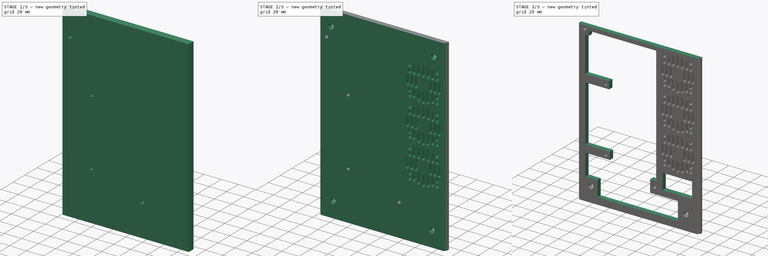
[diagram: build sequence overview — one tinted view per stage of 3, left to right]
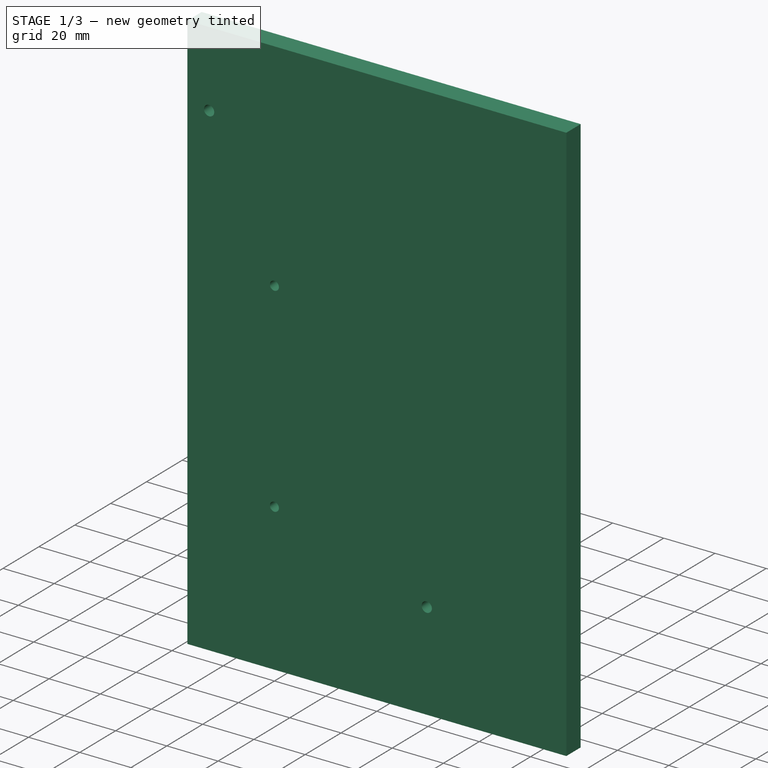
[diagram: stage 1 of 3 — iso view after this stage's code; geometry added in this stage tinted green]
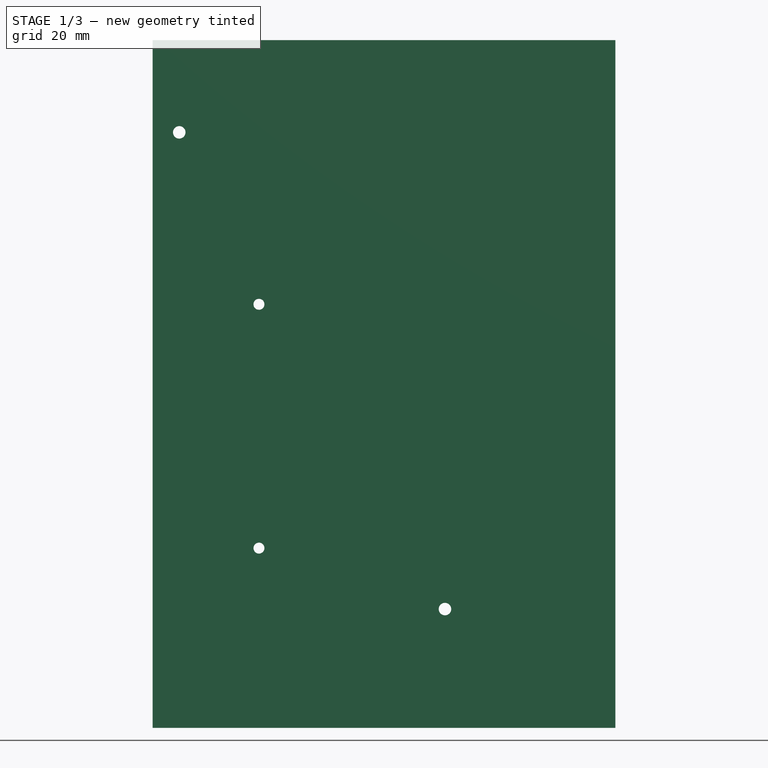
[diagram: stage 1 of 3 — front view after this stage's code; geometry added in this stage tinted green]
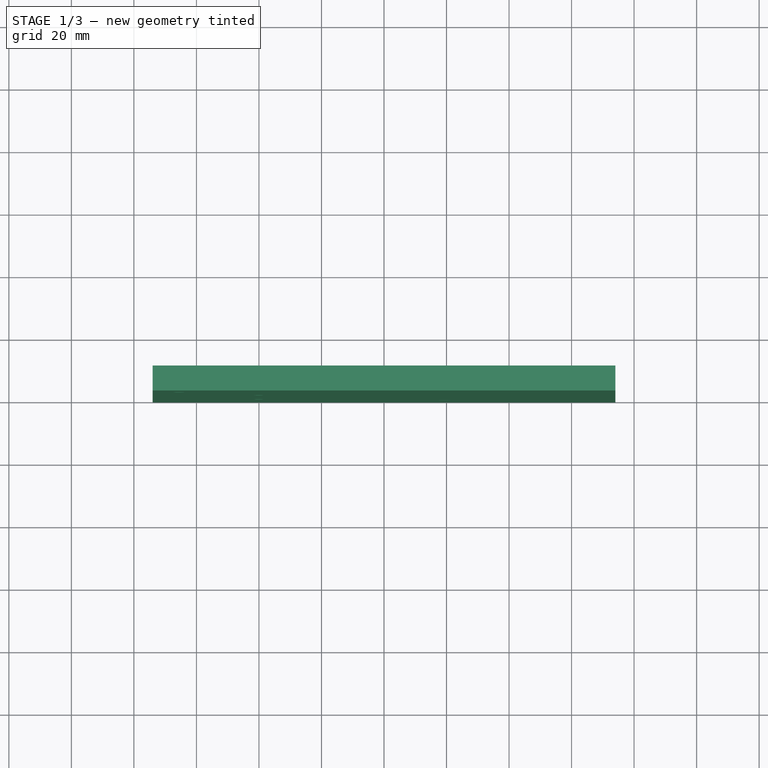
[diagram: stage 1 of 3 — top view after this stage's code; geometry added in this stage tinted green]
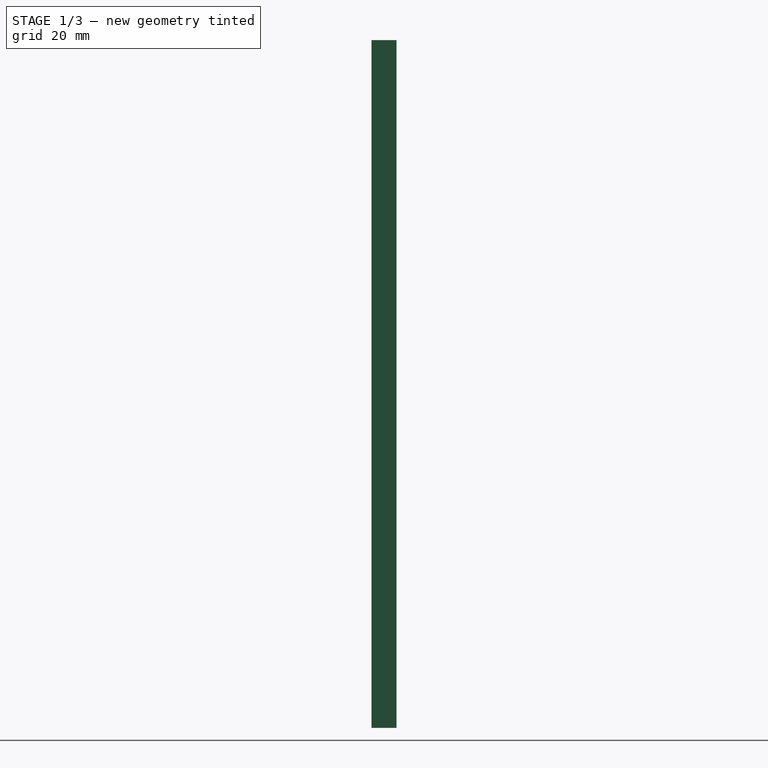
[diagram: stage 1 of 3 — right view after this stage's code; geometry added in this stage tinted green]
FCSTD DOCUMENT  (FreeCAD 0.18.4R)
Label: Bottomplate_holes_cutouts_template
License: All rights reserved
LicenseURL: http://en.wikipedia.org/wiki/All_rights_reserved
objects: Sketcher::SketchObject×7, PartDesign::Pocket×6, PartDesign::Pad×1, PartDesign::Body×1, App::Part×1
note: 22 computed .brp shape members not serialized (recipe doc carries the construction recipe); baked Part::Feature solids carry a one-line shape summary decoded from their .brp

FEATURE [Sketcher::SketchObject] Sketch008
  MapMode = 5
  Support = -> [XY_Plane016]
  sketch-geometry (4):
    g0: LineSegment StartX=-74 StartY=8 StartZ=0 EndX=74 EndY=8 EndZ=0
    g1: LineSegment StartX=74 StartY=8 StartZ=0 EndX=74 EndY=0 EndZ=0
    g2: LineSegment StartX=74 StartY=0 StartZ=0 EndX=-74 EndY=0 EndZ=0
    g3: LineSegment StartX=-74 StartY=0 StartZ=0 EndX=-74 EndY=8 EndZ=0
  constraints (11):
    c: Coincident(g0,g1)
    c: Coincident(g1,g2)
    c: Coincident(g2,g3)
    c: Coincident(g3,g0)
    c: Horizontal(g0)
    c: Vertical(g1)
    c: Vertical(g3)
    c: PointOnObject(g1,g-1)
    c: DistanceX(g2,g1) = 148
    c: DistanceY(g2,g0) = 8
    c: Symmetric(g2,g1,g-2)
FEATURE [PartDesign::Pad] Pad003
  Length = 220
  Length2 = 100
  Midplane = true
  Profile = -> Sketch008
  Type = 0
FEATURE [Sketcher::SketchObject] Sketch009
  MapMode = 5
  Placement = pos=(0,8,0) rot=(0,0.707107,0.707107;3.14159rad)
  Support = -> [Pad003]
  sketch-geometry (5):
    g0: GeomPoint X=72 Y=-76.5 Z=0
    g1: Circle CenterX=-19.5 CenterY=-72 CenterZ=0 NormalX=0 NormalY=0 NormalZ=1 AngleXU=0 Radius=2
    g2: Circle CenterX=65.5 CenterY=80.5 CenterZ=0 NormalX=0 NormalY=0 NormalZ=1 AngleXU=0 Radius=2
    g3: Circle CenterX=40 CenterY=-52.5 CenterZ=0 NormalX=0 NormalY=0 NormalZ=1 AngleXU=0 Radius=1.75
    g4: Circle CenterX=40 CenterY=25.5 CenterZ=0 NormalX=0 NormalY=0 NormalZ=1 AngleXU=0 Radius=1.75
  constraints (14):
    c: DistanceX(g0) = 72
    c: DistanceY(g0) = -76.5
    c: DistanceY(g0,g1) = 4.5
    c: DistanceX(g1,g0) = 91.5
    c: Radius(g1) = 2
    c: DistanceY(g1,g2) = 152.5
    c: DistanceX(g2,g0) = 6.5
    c: Radius(g2) = 2
    c: Equal(g4,g3)
    c: Radius(g4) = 1.75
    c: DistanceY(g0,g3) = 24
    c: Distance(g3,g4) = 78
    c: DistanceX(g4,g0) = 32
    c: DistanceX(g4,g3) = 0
FEATURE [PartDesign::Pocket] Pocket
  BaseFeature = -> Pad003
  Length = 10
  Length2 = 100
  Profile = -> Sketch009
  Type = 0
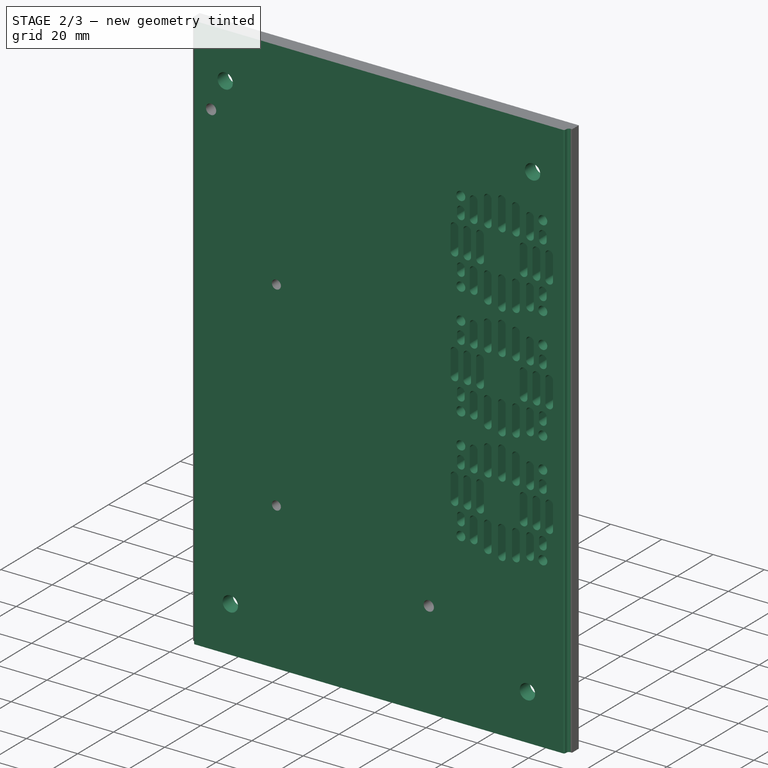
[diagram: stage 2 of 3 — iso view after this stage's code; geometry added in this stage tinted green]
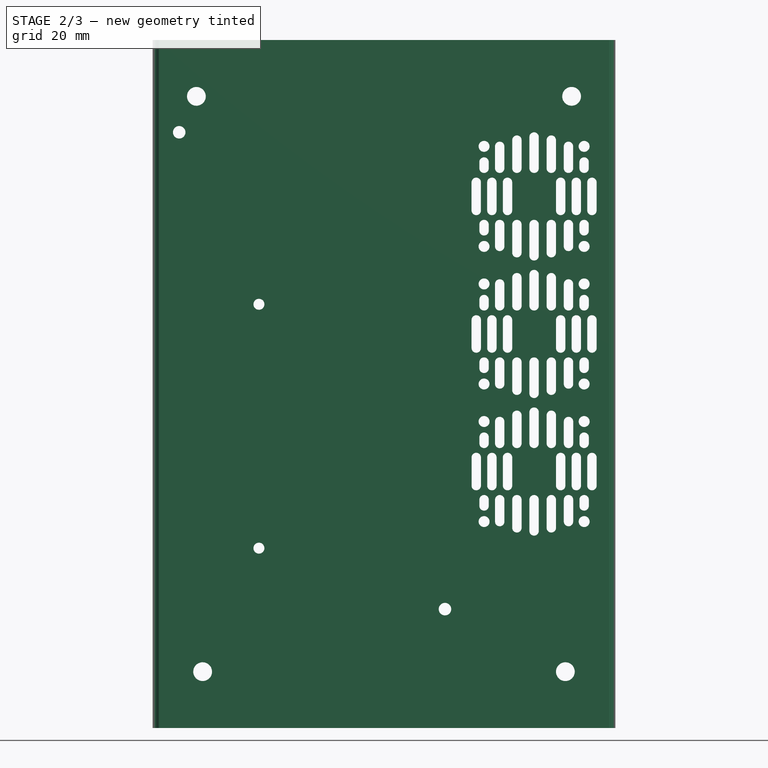
[diagram: stage 2 of 3 — front view after this stage's code; geometry added in this stage tinted green]
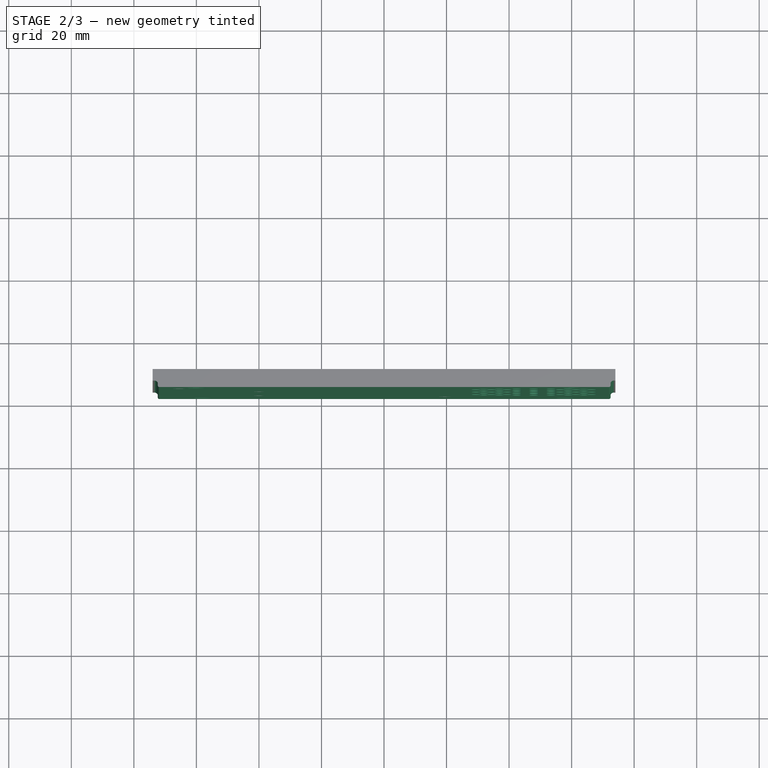
[diagram: stage 2 of 3 — top view after this stage's code; geometry added in this stage tinted green]
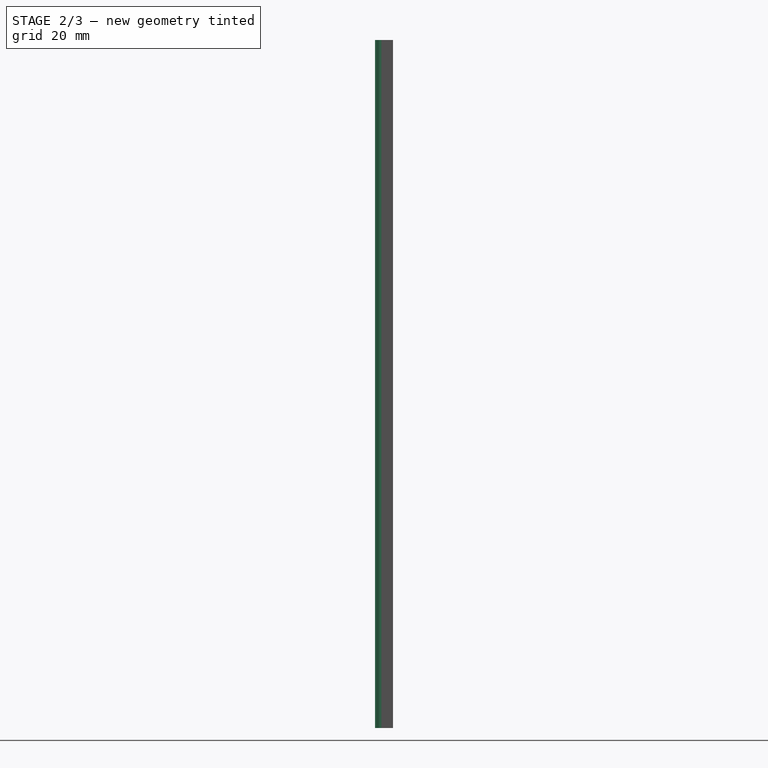
[diagram: stage 2 of 3 — right view after this stage's code; geometry added in this stage tinted green]
FEATURE [Sketcher::SketchObject] Sketch010
  MapMode = 5
  Placement = pos=(0,8,0) rot=(0,0.707107,0.707107;3.14159rad)
  Support = -> [Pocket]
  sketch-geometry (8):
    g0: LineSegment [constr] StartX=-60 StartY=92 StartZ=0 EndX=60 EndY=92 EndZ=0
    g1: LineSegment [constr] StartX=60 StartY=92 StartZ=0 EndX=60 EndY=-92 EndZ=0
    g2: LineSegment [constr] StartX=60 StartY=-92 StartZ=0 EndX=-60 EndY=-92 EndZ=0
    g3: LineSegment [constr] StartX=-60 StartY=-92 StartZ=0 EndX=-60 EndY=92 EndZ=0
    g4: Circle CenterX=-60 CenterY=92 CenterZ=0 NormalX=0 NormalY=0 NormalZ=1 AngleXU=0 Radius=3
    g5: Circle CenterX=60 CenterY=92 CenterZ=0 NormalX=0 NormalY=0 NormalZ=1 AngleXU=0 Radius=3
    g6: Circle CenterX=-58 CenterY=-92 CenterZ=0 NormalX=0 NormalY=0 NormalZ=1 AngleXU=0 Radius=3
    g7: Circle CenterX=58 CenterY=-92 CenterZ=0 NormalX=0 NormalY=0 NormalZ=1 AngleXU=0 Radius=3
  constraints (21):
    c: Coincident(g0,g1)
    c: Coincident(g1,g2)
    c: Coincident(g2,g3)
    c: Coincident(g3,g0)
    c: Horizontal(g0)
    c: Horizontal(g2)
    c: Vertical(g1)
    c: Vertical(g3)
    c: DistanceY(g1,g1) = 184
    c: Equal(g4,g5)
    c: Equal(g5,g7)
    c: Equal(g7,g6)
    c: Coincident(g4,g0)
    c: Coincident(g5,g0)
    c: Diameter(g4) = 6
    c: DistanceX(g4,g5) = 120
    c: DistanceY(g-1,g5) = 92
    c: DistanceX(g-1,g5) = 60
    c: DistanceX(g6,g7) = 116
    c: DistanceY(g6,g-1) = 92
    c: Symmetric(g6,g7,g-2)
FEATURE [PartDesign::Pocket] Pocket005
  BaseFeature = -> Pocket
  Length = 10
  Length2 = 100
  Profile = -> Sketch010
  Type = 0
FEATURE [Sketcher::SketchObject] Sketch011
  MapMode = 5
  Placement = pos=(0,8,0) rot=(0,0.707107,0.707107;3.14159rad)
  Support = -> [Pocket005]
  sketch-geometry (281):
    g0: GeomPoint X=-48 Y=60 Z=0
    g1: Circle [constr] CenterX=-48 CenterY=60 CenterZ=0 NormalX=0 NormalY=0 NormalZ=1 AngleXU=0 Radius=20
    g2: LineSegment [constr] StartX=-64 StartY=76 StartZ=0 EndX=-32 EndY=76 EndZ=0
    g3: LineSegment [constr] StartX=-32 StartY=76 StartZ=0 EndX=-32 EndY=44 EndZ=0
    g4: LineSegment [constr] StartX=-32 StartY=44 StartZ=0 EndX=-64 EndY=44 EndZ=0
    g5: LineSegment [constr] StartX=-64 StartY=44 StartZ=0 EndX=-64 EndY=76 EndZ=0
    g6: Circle [constr] CenterX=-48 CenterY=60 CenterZ=0 NormalX=0 NormalY=0 NormalZ=1 AngleXU=0 Radius=6
    g7: Circle CenterX=-64 CenterY=76 CenterZ=0 NormalX=0 NormalY=0 NormalZ=1 AngleXU=0 Radius=1.75
    g8: Circle CenterX=-32 CenterY=76 CenterZ=0 NormalX=0 NormalY=0 NormalZ=1 AngleXU=0 Radius=1.75
    g9: Circle CenterX=-32 CenterY=44 CenterZ=0 NormalX=0 NormalY=0 NormalZ=1 AngleXU=0 Radius=1.75
    g10: Circle CenterX=-64 CenterY=44 CenterZ=0 NormalX=0 NormalY=0 NormalZ=1 AngleXU=0 Radius=1.75
    g11: ArcOfCircle CenterX=-66.5 CenterY=64.5 CenterZ=0 NormalX=0 NormalY=0 NormalZ=1 AngleXU=0 Radius=1.5 StartAngle=3.21e-14 EndAngle=3.14159
    g12: ArcOfCircle CenterX=-66.5 CenterY=55.5 CenterZ=0 NormalX=0 NormalY=0 NormalZ=1 AngleXU=0 Radius=1.5 StartAngle=3.14159 EndAngle=6.28319
    g13: LineSegment StartX=-68 StartY=64.5 StartZ=0 EndX=-68 EndY=55.5 EndZ=0
    g14: LineSegment StartX=-65 StartY=64.5 StartZ=0 EndX=-65 EndY=55.5 EndZ=0
    g15: LineSegment [constr] StartX=-28 StartY=60 StartZ=0 EndX=-68 EndY=60 EndZ=0
    g16: LineSegment [constr] StartX=-48 StartY=80 StartZ=0 EndX=-48 EndY=40 EndZ=0
    g17: ArcOfCircle CenterX=-61.5 CenterY=64.5 CenterZ=0 NormalX=0 NormalY=0 NormalZ=1 AngleXU=0 Radius=1.5 StartAngle=1.9e-15 EndAngle=3.14159
    g18: ArcOfCircle CenterX=-61.5 CenterY=55.5 CenterZ=0 NormalX=0 NormalY=0 NormalZ=1 AngleXU=0 Radius=1.5 StartAngle=3.14159 EndAngle=6.28319
    g19: LineSegment StartX=-63 StartY=64.5 StartZ=0 EndX=-63 EndY=55.5 EndZ=0
    g20: LineSegment StartX=-60 StartY=64.5 StartZ=0 EndX=-60 EndY=55.5 EndZ=0
    g21: ArcOfCircle CenterX=-56.5 CenterY=64.5 CenterZ=0 NormalX=0 NormalY=0 NormalZ=1 AngleXU=0 Radius=1.5 StartAngle=-3.6e-15 EndAngle=3.14159
    g22: ArcOfCircle CenterX=-56.5 CenterY=55.5 CenterZ=0 NormalX=0 NormalY=0 NormalZ=1 AngleXU=0 Radius=1.5 StartAngle=3.14159 EndAngle=6.28319
    g23: LineSegment StartX=-58 StartY=64.5 StartZ=0 EndX=-58 EndY=55.5 EndZ=0
    g24: LineSegment StartX=-55 StartY=64.5 StartZ=0 EndX=-55 EndY=55.5 EndZ=0
    g25: ArcOfCircle CenterX=-39.5 CenterY=64.5 CenterZ=0 NormalX=0 NormalY=0 NormalZ=1 AngleXU=0 Radius=1.5 StartAngle=3.4e-15 EndAngle=3.14159
    g26: ArcOfCircle CenterX=-39.5 CenterY=55.5 CenterZ=0 NormalX=0 NormalY=0 NormalZ=1 AngleXU=0 Radius=1.5 StartAngle=3.14159 EndAngle=6.28319
    g27: LineSegment StartX=-41 StartY=64.5 StartZ=0 EndX=-41 EndY=55.5 EndZ=0
    g28: LineSegment StartX=-38 StartY=64.5 StartZ=0 EndX=-38 EndY=55.5 EndZ=0
    g29: ArcOfCircle CenterX=-34.5 CenterY=64.5 CenterZ=0 NormalX=0 NormalY=0 NormalZ=1 AngleXU=0 Radius=1.5 StartAngle=-2.7e-15 EndAngle=3.14159
    g30: ArcOfCircle CenterX=-34.5 CenterY=55.5 CenterZ=0 NormalX=0 NormalY=0 NormalZ=1 AngleXU=0 Radius=1.5 StartAngle=3.14159 EndAngle=6.28319
    g31: LineSegment StartX=-36 StartY=64.5 StartZ=0 EndX=-36 EndY=55.5 EndZ=0
    g32: LineSegment StartX=-33 StartY=64.5 StartZ=0 EndX=-33 EndY=55.5 EndZ=0
    g33: ArcOfCircle CenterX=-29.5 CenterY=64.5 CenterZ=0 NormalX=0 NormalY=0 NormalZ=1 AngleXU=0 Radius=1.5 StartAngle=4.2e-15 EndAngle=3.14159
    g34: ArcOfCircle CenterX=-29.5 CenterY=55.5 CenterZ=0 NormalX=0 NormalY=0 NormalZ=1 AngleXU=0 Radius=1.5 StartAngle=3.14159 EndAngle=6.28319
    g35: LineSegment StartX=-31 StartY=64.5 StartZ=0 EndX=-31 EndY=55.5 EndZ=0
    g36: LineSegment StartX=-28 StartY=64.5 StartZ=0 EndX=-28 EndY=55.5 EndZ=0
    g37: ArcOfCircle CenterX=-64 CenterY=51 CenterZ=0 NormalX=0 NormalY=0 NormalZ=1 AngleXU=0 Radius=1.5 StartAngle=0 EndAngle=3.14159
    g38: ArcOfCircle CenterX=-64 CenterY=49 CenterZ=0 NormalX=0 NormalY=0 NormalZ=1 AngleXU=0 Radius=1.5 StartAngle=3.14159 EndAngle=6.28319
    g39: LineSegment StartX=-65.5 StartY=51 StartZ=0 EndX=-65.5 EndY=49 EndZ=0
    g40: LineSegment StartX=-62.5 StartY=51 StartZ=0 EndX=-62.5 EndY=49 EndZ=0
    g41: ArcOfCircle CenterX=-59 CenterY=51 CenterZ=0 NormalX=0 NormalY=0 NormalZ=1 AngleXU=0 Radius=1.5 StartAngle=1.4e-15 EndAngle=3.14159
    g42: ArcOfCircle CenterX=-59 CenterY=44 CenterZ=0 NormalX=0 NormalY=0 NormalZ=1 AngleXU=0 Radius=1.5 StartAngle=3.14159 EndAngle=6.28319
    g43: LineSegment StartX=-60.5 StartY=51 StartZ=0 EndX=-60.5 EndY=44 EndZ=0
    g44: LineSegment StartX=-57.5 StartY=51 StartZ=0 EndX=-57.5 EndY=44 EndZ=0
    g45: ArcOfCircle CenterX=-53.5 CenterY=51 CenterZ=0 NormalX=0 NormalY=0 NormalZ=1 AngleXU=0 Radius=1.5 StartAngle=4.0383e-12 EndAngle=3.14159
    g46: ArcOfCircle CenterX=-53.5 CenterY=42 CenterZ=0 NormalX=0 NormalY=0 NormalZ=1 AngleXU=0 Radius=1.5 StartAngle=3.14159 EndAngle=6.28319
    g47: LineSegment StartX=-55 StartY=51 StartZ=0 EndX=-55 EndY=42 EndZ=0
    g48: LineSegment StartX=-52 StartY=51 StartZ=0 EndX=-52 EndY=42 EndZ=0
    g49: ArcOfCircle CenterX=-48 CenterY=51 CenterZ=0 NormalX=0 NormalY=0 NormalZ=1 AngleXU=0 Radius=1.5 StartAngle=-2.6148e-12 EndAngle=3.14159
    g50: ArcOfCircle CenterX=-48 CenterY=41 CenterZ=0 NormalX=0 NormalY=0 NormalZ=1 AngleXU=0 Radius=1.5 StartAngle=3.14159 EndAngle=6.28319
    g51: LineSegment StartX=-49.5 StartY=51 StartZ=0 EndX=-49.5 EndY=41 EndZ=0
    g52: LineSegment StartX=-46.5 StartY=51 StartZ=0 EndX=-46.5 EndY=41 EndZ=0
    g53: ArcOfCircle CenterX=-42.5 CenterY=51 CenterZ=0 NormalX=0 NormalY=0 NormalZ=1 AngleXU=0 Radius=1.5 StartAngle=1.8e-15 EndAngle=3.14159
    g54: ArcOfCircle CenterX=-42.5 CenterY=42 CenterZ=0 NormalX=0 NormalY=0 NormalZ=1 AngleXU=0 Radius=1.5 StartAngle=3.14159 EndAngle=6.28319
    g55: LineSegment StartX=-44 StartY=51 StartZ=0 EndX=-44 EndY=42 EndZ=0
    g56: LineSegment StartX=-41 StartY=51 StartZ=0 EndX=-41 EndY=42 EndZ=0
    g57: ArcOfCircle CenterX=-37 CenterY=51 CenterZ=0 NormalX=0 NormalY=0 NormalZ=1 AngleXU=0 Radius=1.5 StartAngle=5e-16 EndAngle=3.14159
    g58: ArcOfCircle CenterX=-37 CenterY=44 CenterZ=0 NormalX=0 NormalY=0 NormalZ=1 AngleXU=0 Radius=1.5 StartAngle=3.14159 EndAngle=6.28319
    g59: LineSegment StartX=-38.5 StartY=51 StartZ=0 EndX=-38.5 EndY=44 EndZ=0
    g60: LineSegment StartX=-35.5 StartY=51 StartZ=0 EndX=-35.5 EndY=44 EndZ=0
    g61: ArcOfCircle CenterX=-32 CenterY=51 CenterZ=0 NormalX=0 NormalY=0 NormalZ=1 AngleXU=0 Radius=1.5 StartAngle=0 EndAngle=3.14159
    g62: ArcOfCircle CenterX=-32 CenterY=49 CenterZ=0 NormalX=0 NormalY=0 NormalZ=1 AngleXU=0 Radius=1.5 StartAngle=3.14159 EndAngle=6.28319
    g63: LineSegment StartX=-33.5 StartY=51 StartZ=0 EndX=-33.5 EndY=49 EndZ=0
    g64: LineSegment StartX=-30.5 StartY=51 StartZ=0 EndX=-30.5 EndY=49 EndZ=0
    g65: ArcOfCircle CenterX=-32 CenterY=71 CenterZ=0 NormalX=0 NormalY=0 NormalZ=1 AngleXU=0 Radius=1.5 StartAngle=0 EndAngle=3.14159
    g66: ArcOfCircle CenterX=-32 CenterY=69 CenterZ=0 NormalX=0 NormalY=0 NormalZ=1 AngleXU=0 Radius=1.5 StartAngle=3.14159 EndAngle=6.28319
    g67: LineSegment StartX=-30.5 StartY=71 StartZ=0 EndX=-30.5 EndY=69 EndZ=0
    g68: LineSegment StartX=-33.5 StartY=71 StartZ=0 EndX=-33.5 EndY=69 EndZ=0
    g69: ArcOfCircle CenterX=-37 CenterY=76 CenterZ=0 NormalX=0 NormalY=0 NormalZ=1 AngleXU=0 Radius=1.5 StartAngle=6e-16 EndAngle=3.14159
    g70: ArcOfCircle CenterX=-37 CenterY=69 CenterZ=0 NormalX=0 NormalY=0 NormalZ=1 AngleXU=0 Radius=1.5 StartAngle=3.14159 EndAngle=6.28319
    g71: LineSegment StartX=-35.5 StartY=76 StartZ=0 EndX=-35.5 EndY=69 EndZ=0
    g72: LineSegment StartX=-38.5 StartY=76 StartZ=0 EndX=-38.5 EndY=69 EndZ=0
    g73: ArcOfCircle CenterX=-42.5 CenterY=78 CenterZ=0 NormalX=0 NormalY=0 NormalZ=1 AngleXU=0 Radius=1.5 StartAngle=-9e-16 EndAngle=3.14159
    g74: ArcOfCircle CenterX=-42.5 CenterY=69 CenterZ=0 NormalX=0 NormalY=0 NormalZ=1 AngleXU=0 Radius=1.5 StartAngle=3.14159 EndAngle=6.28319
    g75: LineSegment StartX=-41 StartY=78 StartZ=0 EndX=-41 EndY=69 EndZ=0
    g76: LineSegment StartX=-44 StartY=78 StartZ=0 EndX=-44 EndY=69 EndZ=0
    g77: ArcOfCircle CenterX=-48 CenterY=79 CenterZ=0 NormalX=0 NormalY=0 NormalZ=1 AngleXU=0 Radius=1.5 StartAngle=-4.4e-15 EndAngle=3.14159
    g78: ArcOfCircle CenterX=-48 CenterY=69 CenterZ=0 NormalX=0 NormalY=0 NormalZ=1 AngleXU=0 Radius=1.5 StartAngle=3.14159 EndAngle=6.28319
    g79: LineSegment StartX=-46.5 StartY=79 StartZ=0 EndX=-46.5 EndY=69 EndZ=0
    g80: LineSegment StartX=-49.5 StartY=79 StartZ=0 EndX=-49.5 EndY=69 EndZ=0
    g81: ArcOfCircle CenterX=-53.5 CenterY=78 CenterZ=0 NormalX=0 NormalY=0 NormalZ=1 AngleXU=0 Radius=1.5 StartAngle=-1.8e-15 EndAngle=3.14159
    g82: ArcOfCircle CenterX=-53.5 CenterY=69 CenterZ=0 NormalX=0 NormalY=0 NormalZ=1 AngleXU=0 Radius=1.5 StartAngle=3.14159 EndAngle=6.28319
    g83: LineSegment StartX=-52 StartY=78 StartZ=0 EndX=-52 EndY=69 EndZ=0
    g84: LineSegment StartX=-55 StartY=78 StartZ=0 EndX=-55 EndY=69 EndZ=0
    g85: ArcOfCircle CenterX=-59 CenterY=76 CenterZ=0 NormalX=0 NormalY=0 NormalZ=1 AngleXU=0 Radius=1.5 StartAngle=-2.7e-15 EndAngle=3.14159
    g86: ArcOfCircle CenterX=-59 CenterY=69 CenterZ=0 NormalX=0 NormalY=0 NormalZ=1 AngleXU=0 Radius=1.5 StartAngle=3.14159 EndAngle=6.28319
    g87: LineSegment StartX=-57.5 StartY=76 StartZ=0 EndX=-57.5 EndY=69 EndZ=0
    g88: LineSegment StartX=-60.5 StartY=76 StartZ=0 EndX=-60.5 EndY=69 EndZ=0
    g89: ArcOfCircle CenterX=-64 CenterY=71 CenterZ=0 NormalX=0 NormalY=0 NormalZ=1 AngleXU=0 Radius=1.5 StartAngle=8.4e-15 EndAngle=3.14159
    g90: ArcOfCircle CenterX=-64 CenterY=69 CenterZ=0 NormalX=0 NormalY=0 NormalZ=1 AngleXU=0 Radius=1.5 StartAngle=3.14159 EndAngle=6.28319
    g91: LineSegment StartX=-62.5 StartY=71 StartZ=0 EndX=-62.5 EndY=69 EndZ=0
    g92: LineSegment StartX=-65.5 StartY=69 StartZ=0 EndX=-65.5 EndY=71 EndZ=0
    g93: GeomPoint X=-48.0035 Y=16 Z=0
    g94: Circle [constr] CenterX=-48.0035 CenterY=16 CenterZ=0 NormalX=0 NormalY=0 NormalZ=1 AngleXU=0 Radius=20
    g95: LineSegment [constr] StartX=-64.0035 StartY=32 StartZ=0 EndX=-32.0035 EndY=32 EndZ=0
    g96: LineSegment [constr] StartX=-32.0035 StartY=32 StartZ=0 EndX=-32.0035 EndY=0 EndZ=0
    g97: LineSegment [constr] StartX=-32.0035 StartY=0 StartZ=0 EndX=-64.0035 EndY=0 EndZ=0
    g98: LineSegment [constr] StartX=-64.0035 StartY=0 StartZ=0 EndX=-64.0035 EndY=32 EndZ=0
    g99: Circle [constr] CenterX=-48.0035 CenterY=16 CenterZ=0 NormalX=0 NormalY=0 NormalZ=1 AngleXU=0 Radius=6
    g100: Circle CenterX=-64.0035 CenterY=32 CenterZ=0 NormalX=0 NormalY=0 NormalZ=1 AngleXU=0 Radius=1.75
    g101: Circle CenterX=-32.0035 CenterY=32 CenterZ=0 NormalX=0 NormalY=0 NormalZ=1 AngleXU=0 Radius=1.75
    g102: Circle CenterX=-32.0035 CenterY=0 CenterZ=0 NormalX=0 NormalY=0 NormalZ=1 AngleXU=0 Radius=1.75
    g103: Circle CenterX=-64.0035 CenterY=0 CenterZ=0 NormalX=0 NormalY=0 NormalZ=1 AngleXU=0 Radius=1.75
    g104: ArcOfCircle CenterX=-66.5035 CenterY=20.5 CenterZ=0 NormalX=0 NormalY=0 NormalZ=1 AngleXU=0 Radius=1.5 StartAngle=3.21e-14 EndAngle=3.14159
    g105: ArcOfCircle CenterX=-66.5035 CenterY=11.5 CenterZ=0 NormalX=0 NormalY=0 NormalZ=1 AngleXU=0 Radius=1.5 StartAngle=3.14159 EndAngle=6.28319
    g106: LineSegment StartX=-68.0035 StartY=20.5 StartZ=0 EndX=-68.0035 EndY=11.5 EndZ=0
    g107: LineSegment StartX=-65.0035 StartY=20.5 StartZ=0 EndX=-65.0035 EndY=11.5 EndZ=0
    g108: LineSegment [constr] StartX=-28.0035 StartY=16 StartZ=0 EndX=-68.0035 EndY=16 EndZ=0
    g109: LineSegment [constr] StartX=-48.0035 StartY=36 StartZ=0 EndX=-48.0035 EndY=-4 EndZ=0
    g110: ArcOfCircle CenterX=-61.5035 CenterY=20.5 CenterZ=0 NormalX=0 NormalY=0 NormalZ=1 AngleXU=0 Radius=1.5 StartAngle=1.9e-15 EndAngle=3.14159
    g111: ArcOfCircle CenterX=-61.5035 CenterY=11.5 CenterZ=0 NormalX=0 NormalY=0 NormalZ=1 AngleXU=0 Radius=1.5 StartAngle=3.14159 EndAngle=6.28319
    g112: LineSegment StartX=-63.0035 StartY=20.5 StartZ=0 EndX=-63.0035 EndY=11.5 EndZ=0
    g113: LineSegment StartX=-60.0035 StartY=20.5 StartZ=0 EndX=-60.0035 EndY=11.5 EndZ=0
    g114: ArcOfCircle CenterX=-56.5035 CenterY=20.5 CenterZ=0 NormalX=0 NormalY=0 NormalZ=1 AngleXU=0 Radius=1.5 StartAngle=-3.6e-15 EndAngle=3.14159
    g115: ArcOfCircle CenterX=-56.5035 CenterY=11.5 CenterZ=0 NormalX=0 NormalY=0 NormalZ=1 AngleXU=0 Radius=1.5 StartAngle=3.14159 EndAngle=6.28319
    g116: LineSegment StartX=-58.0035 StartY=20.5 StartZ=0 EndX=-58.0035 EndY=11.5 EndZ=0
    g117: LineSegment StartX=-55.0035 StartY=20.5 StartZ=0 EndX=-55.0035 EndY=11.5 EndZ=0
    g118: ArcOfCircle CenterX=-39.5035 CenterY=20.5 CenterZ=0 NormalX=0 NormalY=0 NormalZ=1 AngleXU=0 Radius=1.5 StartAngle=3.4e-15 EndAngle=3.14159
    g119: ArcOfCircle CenterX=-39.5035 CenterY=11.5 CenterZ=0 NormalX=0 NormalY=0 NormalZ=1 AngleXU=0 Radius=1.5 StartAngle=3.14159 EndAngle=6.28319
    g120: LineSegment StartX=-41.0035 StartY=20.5 StartZ=0 EndX=-41.0035 EndY=11.5 EndZ=0
    g121: LineSegment StartX=-38.0035 StartY=20.5 StartZ=0 EndX=-38.0035 EndY=11.5 EndZ=0
    g122: ArcOfCircle CenterX=-34.5035 CenterY=20.5 CenterZ=0 NormalX=0 NormalY=0 NormalZ=1 AngleXU=0 Radius=1.5 StartAngle=-2.7e-15 EndAngle=3.14159
    g123: ArcOfCircle CenterX=-34.5035 CenterY=11.5 CenterZ=0 NormalX=0 NormalY=0 NormalZ=1 AngleXU=0 Radius=1.5 StartAngle=3.14159 EndAngle=6.28319
    g124: LineSegment StartX=-36.0035 StartY=20.5 StartZ=0 EndX=-36.0035 EndY=11.5 EndZ=0
    g125: LineSegment StartX=-33.0035 StartY=20.5 StartZ=0 EndX=-33.0035 EndY=11.5 EndZ=0
    g126: ArcOfCircle CenterX=-29.5035 CenterY=20.5 CenterZ=0 NormalX=0 NormalY=0 NormalZ=1 AngleXU=0 Radius=1.5 StartAngle=4.2e-15 EndAngle=3.14159
    g127: ArcOfCircle CenterX=-29.5035 CenterY=11.5 CenterZ=0 NormalX=0 NormalY=0 NormalZ=1 AngleXU=0 Radius=1.5 StartAngle=3.14159 EndAngle=6.28319
    g128: LineSegment StartX=-31.0035 StartY=20.5 StartZ=0 EndX=-31.0035 EndY=11.5 EndZ=0
    g129: LineSegment StartX=-28.0035 StartY=20.5 StartZ=0 EndX=-28.0035 EndY=11.5 EndZ=0
    g130: ArcOfCircle CenterX=-64.0035 CenterY=7 CenterZ=0 NormalX=0 NormalY=0 NormalZ=1 AngleXU=0 Radius=1.5 StartAngle=0 EndAngle=3.14159
    g131: ArcOfCircle CenterX=-64.0035 CenterY=5 CenterZ=0 NormalX=0 NormalY=0 NormalZ=1 AngleXU=0 Radius=1.5 StartAngle=3.14159 EndAngle=6.28319
    g132: LineSegment StartX=-65.5035 StartY=7 StartZ=0 EndX=-65.5035 EndY=5 EndZ=0
    g133: LineSegment StartX=-62.5035 StartY=7 StartZ=0 EndX=-62.5035 EndY=5 EndZ=0
    g134: ArcOfCircle CenterX=-59.0035 CenterY=7 CenterZ=0 NormalX=0 NormalY=0 NormalZ=1 AngleXU=0 Radius=1.5 StartAngle=1.4e-15 EndAngle=3.14159
    g135: ArcOfCircle CenterX=-59.0035 CenterY=-6.0538e-12 CenterZ=0 NormalX=0 NormalY=0 NormalZ=1 AngleXU=0 Radius=1.5 StartAngle=3.14159 EndAngle=6.28319
    g136: LineSegment StartX=-60.5035 StartY=7 StartZ=0 EndX=-60.5035 EndY=-6.052e-12 EndZ=0
    g137: LineSegment StartX=-57.5035 StartY=7 StartZ=0 EndX=-57.5035 EndY=-6.0529e-12 EndZ=0
    g138: ArcOfCircle CenterX=-53.5035 CenterY=7 CenterZ=0 NormalX=0 NormalY=0 NormalZ=1 AngleXU=0 Radius=1.5 StartAngle=4.0383e-12 EndAngle=3.14159
    g139: ArcOfCircle CenterX=-53.5035 CenterY=-2 CenterZ=0 NormalX=0 NormalY=0 NormalZ=1 AngleXU=0 Radius=1.5 StartAngle=3.14159 EndAngle=6.28319
    g140: LineSegment StartX=-55.0035 StartY=7 StartZ=0 EndX=-55.0035 EndY=-2 EndZ=0
    g141: LineSegment StartX=-52.0035 StartY=7 StartZ=0 EndX=-52.0035 EndY=-2 EndZ=0
    g142: ArcOfCircle CenterX=-48.0035 CenterY=7 CenterZ=0 NormalX=0 NormalY=0 NormalZ=1 AngleXU=0 Radius=1.5 StartAngle=-2.6148e-12 EndAngle=3.14159
    g143: ArcOfCircle CenterX=-48.0035 CenterY=-3 CenterZ=0 NormalX=0 NormalY=0 NormalZ=1 AngleXU=0 Radius=1.5 StartAngle=3.14159 EndAngle=6.28319
    g144: LineSegment StartX=-49.5035 StartY=7 StartZ=0 EndX=-49.5035 EndY=-3 EndZ=0
    g145: LineSegment StartX=-46.5035 StartY=7 StartZ=0 EndX=-46.5035 EndY=-3 EndZ=0
    g146: ArcOfCircle CenterX=-42.5035 CenterY=7 CenterZ=0 NormalX=0 NormalY=0 NormalZ=1 AngleXU=0 Radius=1.5 StartAngle=1.8e-15 EndAngle=3.14159
    g147: ArcOfCircle CenterX=-42.5035 CenterY=-2 CenterZ=0 NormalX=0 NormalY=0 NormalZ=1 AngleXU=0 Radius=1.5 StartAngle=3.14159 EndAngle=6.28319
    g148: LineSegment StartX=-44.0035 StartY=7 StartZ=0 EndX=-44.0035 EndY=-2 EndZ=0
    g149: LineSegment StartX=-41.0035 StartY=7 StartZ=0 EndX=-41.0035 EndY=-2 EndZ=0
    g150: ArcOfCircle CenterX=-37.0035 CenterY=7 CenterZ=0 NormalX=0 NormalY=0 NormalZ=1 AngleXU=0 Radius=1.5 StartAngle=5e-16 EndAngle=3.14159
    g151: ArcOfCircle CenterX=-37.0035 CenterY=-3.8796e-12 CenterZ=0 NormalX=0 NormalY=0 NormalZ=1 AngleXU=0 Radius=1.5 StartAngle=3.14159 EndAngle=6.28319
    g152: LineSegment StartX=-38.5035 StartY=7 StartZ=0 EndX=-38.5035 EndY=-3.8805e-12 EndZ=0
    g153: LineSegment StartX=-35.5035 StartY=7 StartZ=0 EndX=-35.5035 EndY=-3.8822e-12 EndZ=0
    g154: ArcOfCircle CenterX=-32.0035 CenterY=7 CenterZ=0 NormalX=0 NormalY=0 NormalZ=1 AngleXU=0 Radius=1.5 StartAngle=0 EndAngle=3.14159
    g155: ArcOfCircle CenterX=-32.0035 CenterY=5 CenterZ=0 NormalX=0 NormalY=0 NormalZ=1 AngleXU=0 Radius=1.5 StartAngle=3.14159 EndAngle=6.28319
    g156: LineSegment StartX=-33.5035 StartY=7 StartZ=0 EndX=-33.5035 EndY=5 EndZ=0
    g157: LineSegment StartX=-30.5035 StartY=7 StartZ=0 EndX=-30.5035 EndY=5 EndZ=0
    g158: ArcOfCircle CenterX=-32.0035 CenterY=27 CenterZ=0 NormalX=0 NormalY=0 NormalZ=1 AngleXU=0 Radius=1.5 StartAngle=0 EndAngle=3.14159
    g159: ArcOfCircle CenterX=-32.0035 CenterY=25 CenterZ=0 NormalX=0 NormalY=0 NormalZ=1 AngleXU=0 Radius=1.5 StartAngle=3.14159 EndAngle=6.28319
    g160: LineSegment StartX=-30.5035 StartY=27 StartZ=0 EndX=-30.5035 EndY=25 EndZ=0
    g161: LineSegment StartX=-33.5035 StartY=27 StartZ=0 EndX=-33.5035 EndY=25 EndZ=0
    g162: ArcOfCircle CenterX=-37.0035 CenterY=32 CenterZ=0 NormalX=0 NormalY=0 NormalZ=1 AngleXU=0 Radius=1.5 StartAngle=6e-16 EndAngle=3.14159
    g163: ArcOfCircle CenterX=-37.0035 CenterY=25 CenterZ=0 NormalX=0 NormalY=0 NormalZ=1 AngleXU=0 Radius=1.5 StartAngle=3.14159 EndAngle=6.28319
    g164: LineSegment StartX=-35.5035 StartY=32 StartZ=0 EndX=-35.5035 EndY=25 EndZ=0
    g165: LineSegment StartX=-38.5035 StartY=32 StartZ=0 EndX=-38.5035 EndY=25 EndZ=0
    g166: ArcOfCircle CenterX=-42.5035 CenterY=34 CenterZ=0 NormalX=0 NormalY=0 NormalZ=1 AngleXU=0 Radius=1.5 StartAngle=-9e-16 EndAngle=3.14159
    g167: ArcOfCircle CenterX=-42.5035 CenterY=25 CenterZ=0 NormalX=0 NormalY=0 NormalZ=1 AngleXU=0 Radius=1.5 StartAngle=3.14159 EndAngle=6.28319
    g168: LineSegment StartX=-41.0035 StartY=34 StartZ=0 EndX=-41.0035 EndY=25 EndZ=0
    g169: LineSegment StartX=-44.0035 StartY=34 StartZ=0 EndX=-44.0035 EndY=25 EndZ=0
    g170: ArcOfCircle CenterX=-48.0035 CenterY=35 CenterZ=0 NormalX=0 NormalY=0 NormalZ=1 AngleXU=0 Radius=1.5 StartAngle=-4.4e-15 EndAngle=3.14159
    g171: ArcOfCircle CenterX=-48.0035 CenterY=25 CenterZ=0 NormalX=0 NormalY=0 NormalZ=1 AngleXU=0 Radius=1.5 StartAngle=3.14159 EndAngle=6.28319
    g172: LineSegment StartX=-46.5035 StartY=35 StartZ=0 EndX=-46.5035 EndY=25 EndZ=0
    g173: LineSegment StartX=-49.5035 StartY=35 StartZ=0 EndX=-49.5035 EndY=25 EndZ=0
    g174: ArcOfCircle CenterX=-53.5035 CenterY=34 CenterZ=0 NormalX=0 NormalY=0 NormalZ=1 AngleXU=0 Radius=1.5 StartAngle=-1.8e-15 EndAngle=3.14159
    g175: ArcOfCircle CenterX=-53.5035 CenterY=25 CenterZ=0 NormalX=0 NormalY=0 NormalZ=1 AngleXU=0 Radius=1.5 StartAngle=3.14159 EndAngle=6.28319
    g176: LineSegment StartX=-52.0035 StartY=34 StartZ=0 EndX=-52.0035 EndY=25 EndZ=0
    g177: LineSegment StartX=-55.0035 StartY=34 StartZ=0 EndX=-55.0035 EndY=25 EndZ=0
    g178: ArcOfCircle CenterX=-59.0035 CenterY=32 CenterZ=0 NormalX=0 NormalY=0 NormalZ=1 AngleXU=0 Radius=1.5 StartAngle=-2.7e-15 EndAngle=3.14159
    g179: ArcOfCircle CenterX=-59.0035 CenterY=25 CenterZ=0 NormalX=0 NormalY=0 NormalZ=1 AngleXU=0 Radius=1.5 StartAngle=3.14159 EndAngle=6.28319
    g180: LineSegment StartX=-57.5035 StartY=32 StartZ=0 EndX=-57.5035 EndY=25 EndZ=0
    g181: LineSegment StartX=-60.5035 StartY=32 StartZ=0 EndX=-60.5035 EndY=25 EndZ=0
    g182: ArcOfCircle CenterX=-64.0035 CenterY=27 CenterZ=0 NormalX=0 NormalY=0 NormalZ=1 AngleXU=0 Radius=1.5 StartAngle=8.4e-15 EndAngle=3.14159
    g183: ArcOfCircle CenterX=-64.0035 CenterY=25 CenterZ=0 NormalX=0 NormalY=0 NormalZ=1 AngleXU=0 Radius=1.5 StartAngle=3.14159 EndAngle=6.28319
    g184: LineSegment StartX=-62.5035 StartY=27 StartZ=0 EndX=-62.5035 EndY=25 EndZ=0
    g185: LineSegment StartX=-65.5035 StartY=25 StartZ=0 EndX=-65.5035 EndY=27 EndZ=0
    g186: LineSegment [constr] StartX=-48 StartY=60 StartZ=0 EndX=-48.0035 EndY=16 EndZ=0
    g187: GeomPoint X=-48.007 Y=-28 Z=0
    g188: Circle [constr] CenterX=-48.007 CenterY=-28 CenterZ=0 NormalX=0 NormalY=0 NormalZ=1 AngleXU=0 Radius=20
    g189: LineSegment [constr] StartX=-64.007 StartY=-12 StartZ=0 EndX=-32.007 EndY=-12 EndZ=0
    g190: LineSegment [constr] StartX=-32.007 StartY=-12 StartZ=0 EndX=-32.007 EndY=-44 EndZ=0
    g191: LineSegment [constr] StartX=-32.007 StartY=-44 StartZ=0 EndX=-64.007 EndY=-44 EndZ=0
    g192: LineSegment [constr] StartX=-64.007 StartY=-44 StartZ=0 EndX=-64.007 EndY=-12 EndZ=0
    g193: Circle [constr] CenterX=-48.007 CenterY=-28 CenterZ=0 NormalX=0 NormalY=0 NormalZ=1 AngleXU=0 Radius=6
    g194: Circle CenterX=-64.007 CenterY=-12 CenterZ=0 NormalX=0 NormalY=0 NormalZ=1 AngleXU=0 Radius=1.75
    g195: Circle CenterX=-32.007 CenterY=-12 CenterZ=0 NormalX=0 NormalY=0 NormalZ=1 AngleXU=0 Radius=1.75
    g196: Circle CenterX=-32.007 CenterY=-44 CenterZ=0 NormalX=0 NormalY=0 NormalZ=1 AngleXU=0 Radius=1.75
    g197: Circle CenterX=-64.007 CenterY=-44 CenterZ=0 NormalX=0 NormalY=0 NormalZ=1 AngleXU=0 Radius=1.75
    g198: ArcOfCircle CenterX=-66.507 CenterY=-23.5 CenterZ=0 NormalX=0 NormalY=0 NormalZ=1 AngleXU=0 Radius=1.5 StartAngle=3.21e-14 EndAngle=3.14159
    g199: ArcOfCircle CenterX=-66.507 CenterY=-32.5 CenterZ=0 NormalX=0 NormalY=0 NormalZ=1 AngleXU=0 Radius=1.5 StartAngle=3.14159 EndAngle=6.28319
    g200: LineSegment StartX=-68.007 StartY=-23.5 StartZ=0 EndX=-68.007 EndY=-32.5 EndZ=0
    g201: LineSegment StartX=-65.007 StartY=-23.5 StartZ=0 EndX=-65.007 EndY=-32.5 EndZ=0
    g202: LineSegment [constr] StartX=-28.007 StartY=-28 StartZ=0 EndX=-68.007 EndY=-28 EndZ=0
    g203: LineSegment [constr] StartX=-48.007 StartY=-8 StartZ=0 EndX=-48.007 EndY=-48 EndZ=0
    g204: ArcOfCircle CenterX=-61.507 CenterY=-23.5 CenterZ=0 NormalX=0 NormalY=0 NormalZ=1 AngleXU=0 Radius=1.5 StartAngle=1.9e-15 EndAngle=3.14159
    g205: ArcOfCircle CenterX=-61.507 CenterY=-32.5 CenterZ=0 NormalX=0 NormalY=0 NormalZ=1 AngleXU=0 Radius=1.5 StartAngle=3.14159 EndAngle=6.28319
    g206: LineSegment StartX=-63.007 StartY=-23.5 StartZ=0 EndX=-63.007 EndY=-32.5 EndZ=0
    g207: LineSegment StartX=-60.007 StartY=-23.5 StartZ=0 EndX=-60.007 EndY=-32.5 EndZ=0
    g208: ArcOfCircle CenterX=-56.507 CenterY=-23.5 CenterZ=0 NormalX=0 NormalY=0 NormalZ=1 AngleXU=0 Radius=1.5 StartAngle=-3.6e-15 EndAngle=3.14159
    g209: ArcOfCircle CenterX=-56.507 CenterY=-32.5 CenterZ=0 NormalX=0 NormalY=0 NormalZ=1 AngleXU=0 Radius=1.5 StartAngle=3.14159 EndAngle=6.28319
    g210: LineSegment StartX=-58.007 StartY=-23.5 StartZ=0 EndX=-58.007 EndY=-32.5 EndZ=0
    g211: LineSegment StartX=-55.007 StartY=-23.5 StartZ=0 EndX=-55.007 EndY=-32.5 EndZ=0
    g212: ArcOfCircle CenterX=-39.507 CenterY=-23.5 CenterZ=0 NormalX=0 NormalY=0 NormalZ=1 AngleXU=0 Radius=1.5 StartAngle=3.4e-15 EndAngle=3.14159
    g213: ArcOfCircle CenterX=-39.507 CenterY=-32.5 CenterZ=0 NormalX=0 NormalY=0 NormalZ=1 AngleXU=0 Radius=1.5 StartAngle=3.14159 EndAngle=6.28319
    g214: LineSegment StartX=-41.007 StartY=-23.5 StartZ=0 EndX=-41.007 EndY=-32.5 EndZ=0
    g215: LineSegment StartX=-38.007 StartY=-23.5 StartZ=0 EndX=-38.007 EndY=-32.5 EndZ=0
    g216: ArcOfCircle CenterX=-34.507 CenterY=-23.5 CenterZ=0 NormalX=0 NormalY=0 NormalZ=1 AngleXU=0 Radius=1.5 StartAngle=-2.7e-15 EndAngle=3.14159
    g217: ArcOfCircle CenterX=-34.507 CenterY=-32.5 CenterZ=0 NormalX=0 NormalY=0 NormalZ=1 AngleXU=0 Radius=1.5 StartAngle=3.14159 EndAngle=6.28319
    g218: LineSegment StartX=-36.007 StartY=-23.5 StartZ=0 EndX=-36.007 EndY=-32.5 EndZ=0
    g219: LineSegment StartX=-33.007 StartY=-23.5 StartZ=0 EndX=-33.007 EndY=-32.5 EndZ=0
    g220: ArcOfCircle CenterX=-29.507 CenterY=-23.5 CenterZ=0 NormalX=0 NormalY=0 NormalZ=1 AngleXU=0 Radius=1.5 StartAngle=4.2e-15 EndAngle=3.14159
    g221: ArcOfCircle CenterX=-29.507 CenterY=-32.5 CenterZ=0 NormalX=0 NormalY=0 NormalZ=1 AngleXU=0 Radius=1.5 StartAngle=3.14159 EndAngle=6.28319
    g222: LineSegment StartX=-31.007 StartY=-23.5 StartZ=0 EndX=-31.007 EndY=-32.5 EndZ=0
    g223: LineSegment StartX=-28.007 StartY=-23.5 StartZ=0 EndX=-28.007 EndY=-32.5 EndZ=0
    g224: ArcOfCircle CenterX=-64.007 CenterY=-37 CenterZ=0 NormalX=0 NormalY=0 NormalZ=1 AngleXU=0 Radius=1.5 StartAngle=0 EndAngle=3.14159
    g225: ArcOfCircle CenterX=-64.007 CenterY=-39 CenterZ=0 NormalX=0 NormalY=0 NormalZ=1 AngleXU=0 Radius=1.5 StartAngle=3.14159 EndAngle=6.28319
    g226: LineSegment StartX=-65.507 StartY=-37 StartZ=0 EndX=-65.507 EndY=-39 EndZ=0
    g227: LineSegment StartX=-62.507 StartY=-37 StartZ=0 EndX=-62.507 EndY=-39 EndZ=0
    g228: ArcOfCircle CenterX=-59.007 CenterY=-37 CenterZ=0 NormalX=0 NormalY=0 NormalZ=1 AngleXU=0 Radius=1.5 StartAngle=1.4e-15 EndAngle=3.14159
    g229: ArcOfCircle CenterX=-59.007 CenterY=-44 CenterZ=0 NormalX=0 NormalY=0 NormalZ=1 AngleXU=0 Radius=1.5 StartAngle=3.14159 EndAngle=6.28319
    g230: LineSegment StartX=-60.507 StartY=-37 StartZ=0 EndX=-60.507 EndY=-44 EndZ=0
    g231: LineSegment StartX=-57.507 StartY=-37 StartZ=0 EndX=-57.507 EndY=-44 EndZ=0
    g232: ArcOfCircle CenterX=-53.507 CenterY=-37 CenterZ=0 NormalX=0 NormalY=0 NormalZ=1 AngleXU=0 Radius=1.5 StartAngle=4.0383e-12 EndAngle=3.14159
    g233: ArcOfCircle CenterX=-53.507 CenterY=-46 CenterZ=0 NormalX=0 NormalY=0 NormalZ=1 AngleXU=0 Radius=1.5 StartAngle=3.14159 EndAngle=6.28319
    g234: LineSegment StartX=-55.007 StartY=-37 StartZ=0 EndX=-55.007 EndY=-46 EndZ=0
    g235: LineSegment StartX=-52.007 StartY=-37 StartZ=0 EndX=-52.007 EndY=-46 EndZ=0
    g236: ArcOfCircle CenterX=-48.007 CenterY=-37 CenterZ=0 NormalX=0 NormalY=0 NormalZ=1 AngleXU=0 Radius=1.5 StartAngle=-2.6148e-12 EndAngle=3.14159
    g237: ArcOfCircle CenterX=-48.007 CenterY=-47 CenterZ=0 NormalX=0 NormalY=0 NormalZ=1 AngleXU=0 Radius=1.5 StartAngle=3.14159 EndAngle=6.28319
    g238: LineSegment StartX=-49.507 StartY=-37 StartZ=0 EndX=-49.507 EndY=-47 EndZ=0
    g239: LineSegment StartX=-46.507 StartY=-37 StartZ=0 EndX=-46.507 EndY=-47 EndZ=0
    g240: ArcOfCircle CenterX=-42.507 CenterY=-37 CenterZ=0 NormalX=0 NormalY=0 NormalZ=1 AngleXU=0 Radius=1.5 StartAngle=1.8e-15 EndAngle=3.14159
    g241: ArcOfCircle CenterX=-42.507 CenterY=-46 CenterZ=0 NormalX=0 NormalY=0 NormalZ=1 AngleXU=0 Radius=1.5 StartAngle=3.14159 EndAngle=6.28319
    g242: LineSegment StartX=-44.007 StartY=-37 StartZ=0 EndX=-44.007 EndY=-46 EndZ=0
    g243: LineSegment StartX=-41.007 StartY=-37 StartZ=0 EndX=-41.007 EndY=-46 EndZ=0
    g244: ArcOfCircle CenterX=-37.007 CenterY=-37 CenterZ=0 NormalX=0 NormalY=0 NormalZ=1 AngleXU=0 Radius=1.5 StartAngle=5e-16 EndAngle=3.14159
    g245: ArcOfCircle CenterX=-37.007 CenterY=-44 CenterZ=0 NormalX=0 NormalY=0 NormalZ=1 AngleXU=0 Radius=1.5 StartAngle=3.14159 EndAngle=6.28319
    g246: LineSegment StartX=-38.507 StartY=-37 StartZ=0 EndX=-38.507 EndY=-44 EndZ=0
    g247: LineSegment StartX=-35.507 StartY=-37 StartZ=0 EndX=-35.507 EndY=-44 EndZ=0
    g248: ArcOfCircle CenterX=-32.007 CenterY=-37 CenterZ=0 NormalX=0 NormalY=0 NormalZ=1 AngleXU=0 Radius=1.5 StartAngle=0 EndAngle=3.14159
    g249: ArcOfCircle CenterX=-32.007 CenterY=-39 CenterZ=0 NormalX=0 NormalY=0 NormalZ=1 AngleXU=0 Radius=1.5 StartAngle=3.14159 EndAngle=6.28319
    g250: LineSegment StartX=-33.507 StartY=-37 StartZ=0 EndX=-33.507 EndY=-39 EndZ=0
    g251: LineSegment StartX=-30.507 StartY=-37 StartZ=0 EndX=-30.507 EndY=-39 EndZ=0
    g252: ArcOfCircle CenterX=-32.007 CenterY=-17 CenterZ=0 NormalX=0 NormalY=0 NormalZ=1 AngleXU=0 Radius=1.5 StartAngle=0 EndAngle=3.14159
    g253: ArcOfCircle CenterX=-32.007 CenterY=-19 CenterZ=0 NormalX=0 NormalY=0 NormalZ=1 AngleXU=0 Radius=1.5 StartAngle=3.14159 EndAngle=6.28319
    g254: LineSegment StartX=-30.507 StartY=-17 StartZ=0 EndX=-30.507 EndY=-19 EndZ=0
    g255: LineSegment StartX=-33.507 StartY=-17 StartZ=0 EndX=-33.507 EndY=-19 EndZ=0
    g256: ArcOfCircle CenterX=-37.007 CenterY=-12 CenterZ=0 NormalX=0 NormalY=0 NormalZ=1 AngleXU=0 Radius=1.5 StartAngle=6e-16 EndAngle=3.14159
    g257: ArcOfCircle CenterX=-37.007 CenterY=-19 CenterZ=0 NormalX=0 NormalY=0 NormalZ=1 AngleXU=0 Radius=1.5 StartAngle=3.14159 EndAngle=6.28319
    g258: LineSegment StartX=-35.507 StartY=-12 StartZ=0 EndX=-35.507 EndY=-19 EndZ=0
    g259: LineSegment StartX=-38.507 StartY=-12 StartZ=0 EndX=-38.507 EndY=-19 EndZ=0
    g260: ArcOfCircle CenterX=-42.507 CenterY=-10 CenterZ=0 NormalX=0 NormalY=0 NormalZ=1 AngleXU=0 Radius=1.5 StartAngle=-9e-16 EndAngle=3.14159
    g261: ArcOfCircle CenterX=-42.507 CenterY=-19 CenterZ=0 NormalX=0 NormalY=0 NormalZ=1 AngleXU=0 Radius=1.5 StartAngle=3.14159 EndAngle=6.28319
    g262: LineSegment StartX=-41.007 StartY=-10 StartZ=0 EndX=-41.007 EndY=-19 EndZ=0
    g263: LineSegment StartX=-44.007 StartY=-10 StartZ=0 EndX=-44.007 EndY=-19 EndZ=0
    g264: ArcOfCircle CenterX=-48.007 CenterY=-9 CenterZ=0 NormalX=0 NormalY=0 NormalZ=1 AngleXU=0 Radius=1.5 StartAngle=-4.4e-15 EndAngle=3.14159
    g265: ArcOfCircle CenterX=-48.007 CenterY=-19 CenterZ=0 NormalX=0 NormalY=0 NormalZ=1 AngleXU=0 Radius=1.5 StartAngle=3.14159 EndAngle=6.28319
    g266: LineSegment StartX=-46.507 StartY=-9 StartZ=0 EndX=-46.507 EndY=-19 EndZ=0
    g267: LineSegment StartX=-49.507 StartY=-9 StartZ=0 EndX=-49.507 EndY=-19 EndZ=0
    g268: ArcOfCircle CenterX=-53.507 CenterY=-10 CenterZ=0 NormalX=0 NormalY=0 NormalZ=1 AngleXU=0 Radius=1.5 StartAngle=-1.8e-15 EndAngle=3.14159
    g269: ArcOfCircle CenterX=-53.507 CenterY=-19 CenterZ=0 NormalX=0 NormalY=0 NormalZ=1 AngleXU=0 Radius=1.5 StartAngle=3.14159 EndAngle=6.28319
    g270: LineSegment StartX=-52.007 StartY=-10 StartZ=0 EndX=-52.007 EndY=-19 EndZ=0
    g271: LineSegment StartX=-55.007 StartY=-10 StartZ=0 EndX=-55.007 EndY=-19 EndZ=0
    g272: ArcOfCircle CenterX=-59.007 CenterY=-12 CenterZ=0 NormalX=0 NormalY=0 NormalZ=1 AngleXU=0 Radius=1.5 StartAngle=-2.7e-15 EndAngle=3.14159
    g273: ArcOfCircle CenterX=-59.007 CenterY=-19 CenterZ=0 NormalX=0 NormalY=0 NormalZ=1 AngleXU=0 Radius=1.5 StartAngle=3.14159 EndAngle=6.28319
    g274: LineSegment StartX=-57.507 StartY=-12 StartZ=0 EndX=-57.507 EndY=-19 EndZ=0
    g275: LineSegment StartX=-60.507 StartY=-12 StartZ=0 EndX=-60.507 EndY=-19 EndZ=0
    g276: ArcOfCircle CenterX=-64.007 CenterY=-17 CenterZ=0 NormalX=0 NormalY=0 NormalZ=1 AngleXU=0 Radius=1.5 StartAngle=8.4e-15 EndAngle=3.14159
    g277: ArcOfCircle CenterX=-64.007 CenterY=-19 CenterZ=0 NormalX=0 NormalY=0 NormalZ=1 AngleXU=0 Radius=1.5 StartAngle=3.14159 EndAngle=6.28319
    g278: LineSegment StartX=-62.507 StartY=-17 StartZ=0 EndX=-62.507 EndY=-19 EndZ=0
    g279: LineSegment StartX=-65.507 StartY=-19 StartZ=0 EndX=-65.507 EndY=-17 EndZ=0
    g280: LineSegment [constr] StartX=-48.0035 StartY=16 StartZ=0 EndX=-48.007 EndY=-28 EndZ=0
  constraints (730):
    c: DistanceX(g0,g-1) = 48
    c: DistanceY(g-1,g0) = 60
    c: Coincident(g2,g3)
    c: Coincident(g3,g4)
    c: Coincident(g4,g5)
    c: Coincident(g5,g2)
    c: Horizontal(g2)
    c: Horizontal(g4)
    c: Vertical(g3)
    c: Vertical(g5)
    c: DistanceX(g2,g2) = 32
    c: DistanceY(g3,g3) = 32
    c: Symmetric(g2,g3,g0)
    c: Coincident(g0,g1)
    c: Coincident(g6,g0)
    c: Diameter(g6) = 12
    c: Coincident(g7,g2)
    c: Coincident(g8,g2)
    c: Coincident(g9,g3)
    c: Coincident(g10,g4)
    c: Equal(g10,g9)
    c: Equal(g9,g8)
    c: Equal(g8,g7)
    c: Diameter(g9) = 3.5
    c: Tangent(g11,g14) = 1.5708
    c: Tangent(g11,g13) = -1.5708
    c: Tangent(g13,g12) = -1.5708
    c: Tangent(g14,g12) = 1.5708
    c: Equal(g11,g12)
    c: DistanceX(g11,g11) = 3
    c: DistanceY(g12,g11) = 9
    c: PointOnObject(g15,g1)
    c: PointOnObject(g16,g1)
    c: PointOnObject(g16,g1)
    c: Vertical(g16)
    c: Horizontal(g15,g0)
    c: PointOnObject(g15,g1)
    c: PointOnObject(g0,g16)
    c: Symmetric(g11,g12,g15)
    c: Tangent(g17,g20) = 1.5708
    c: Tangent(g17,g19) = -1.5708
    c: Tangent(g19,g18) = -1.5708
    c: Tangent(g20,g18) = 1.5708
    c: Equal(g17,g18)
    c: DistanceX(g17,g17) = 3
    c: Tangent(g21,g24) = 1.5708
    c: Tangent(g21,g23) = -1.5708
    c: Tangent(g23,g22) = -1.5708
    c: Tangent(g24,g22) = 1.5708
    c: Equal(g21,g22)
    c: DistanceX(g21,g21) = 3
    c: Tangent(g25,g28) = 1.5708
    c: Tangent(g25,g27) = -1.5708
    c: Tangent(g27,g26) = -1.5708
    c: Tangent(g28,g26) = 1.5708
    c: Equal(g25,g26)
    c: DistanceX(g25,g25) = 3
    c: Tangent(g29,g32) = 1.5708
    c: Tangent(g29,g31) = -1.5708
    c: Tangent(g31,g30) = -1.5708
    c: Tangent(g32,g30) = 1.5708
    c: Equal(g29,g30)
    c: DistanceX(g29,g29) = 3
    c: Tangent(g33,g36) = 1.5708
    c: Tangent(g33,g35) = -1.5708
    c: Tangent(g35,g34) = -1.5708
    c: Tangent(g36,g34) = 1.5708
    c: Equal(g33,g34)
    c: DistanceX(g33,g33) = 3
    c: Symmetric(g33,g34,g15)
    c: Horizontal(g29,g25)
    c: Horizontal(g25,g33)
    c: DistanceX(g29,g33) = 5
    c: DistanceX(g25,g29) = 5
    c: Horizontal(g11,g11)
    c: Horizontal(g11,g17)
    c: Horizontal(g17,g21)
    c: PointOnObject(g15,g13)
    c: DistanceX(g11,g17) = 5
    c: DistanceX(g17,g21) = 5
    c: Tangent(g37,g40) = 1.5708
    c: Tangent(g40,g38) = 1.5708
    c: Equal(g37,g38)
    c: Equal(g33,g37) = 3
    c: DistanceY(g38,g37) = 2
    c: Equal(g35,g31)
    c: Equal(g31,g27)
    c: Equal(g27,g23)
    c: Equal(g23,g19)
    c: Equal(g19,g13)
    c: Tangent(g41,g44) = 1.5708
    c: Tangent(g41,g43) = -1.5708
    c: Tangent(g43,g42) = -1.5708
    c: Tangent(g44,g42) = 1.5708
    c: Equal(g41,g42)
    c: DistanceY(g42,g41) = 7
    c: Tangent(g45,g48) = 1.5708
    c: Tangent(g45,g47) = -1.5708
    c: Tangent(g47,g46) = -1.5708
    c: Tangent(g48,g46) = 1.5708
    c: Equal(g45,g46)
    c: DistanceY(g46,g45) = 9
    c: Tangent(g49,g52) = 1.5708
    c: Tangent(g49,g51) = -1.5708
    c: Tangent(g51,g50) = -1.5708
    c: Tangent(g52,g50) = 1.5708
    c: Equal(g49,g50)
    c: DistanceY(g50,g49) = 10
    c: Tangent(g53,g56) = 1.5708
    c: Tangent(g53,g55) = -1.5708
    c: Tangent(g55,g54) = -1.5708
    c: Tangent(g56,g54) = 1.5708
    c: Equal(g53,g54)
    c: DistanceY(g54,g53) = 9
    c: Tangent(g57,g60) = 1.5708
    c: Tangent(g57,g59) = -1.5708
    c: Tangent(g59,g58) = -1.5708
    c: Tangent(g60,g58) = 1.5708
    c: Equal(g57,g58)
    c: DistanceY(g58,g57) = 7
    c: Tangent(g61,g64) = 1.5708
    c: Tangent(g61,g63) = -1.5708
    c: Tangent(g63,g62) = -1.5708
    c: Tangent(g64,g62) = 1.5708
    c: Equal(g61,g62)
    c: DistanceY(g62,g61) = 2
    c: Horizontal(g37,g41)
    c: Horizontal(g41,g41)
    c: Horizontal(g41,g45)
    c: Horizontal(g45,g45)
    c: Horizontal(g45,g49)
    c: Horizontal(g49,g49)
    c: Horizontal(g49,g53)
    c: Horizontal(g53,g53)
    c: Horizontal(g53,g57)
    c: Horizontal(g57,g57)
    c: Horizontal(g57,g61)
    c: Horizontal(g61,g61)
    c: DistanceX(g37,g41) = 5
    c: DistanceX(g41,g45) = 5.5
    c: DistanceX(g45,g49) = 5.5
    c: DistanceX(g49,g53) = 5.5
    c: DistanceX(g53,g57) = 5.5
    c: DistanceX(g57,g61) = 5
    c: Coincident(g39,g37)
    c: Coincident(g39,g38)
    c: DistanceX(g42,g42) = 3
    c: DistanceX(g46,g46) = 3
    c: DistanceX(g50,g50) = 3
    c: DistanceX(g54,g54) = 3
    c: DistanceX(g58,g58) = 3
    c: DistanceX(g62,g62) = 3
    c: DistanceY(g49,g0) = 9
    c: PointOnObject(g49,g16)
    c: Vertical(g17,g18)
    c: Vertical(g21,g22)
    c: Horizontal(g37,g37)
    c: Horizontal(g37,g37)
    c: Tangent(g65,g68) = -1.5708
    c: Tangent(g68,g66) = -1.5708
    c: Equal(g65,g66)
    c: Tangent(g69,g72) = -1.5708
    c: Tangent(g69,g71) = 1.5708
    c: Tangent(g71,g70) = 1.5708
    c: Tangent(g72,g70) = -1.5708
    c: Equal(g69,g70)
    c: Tangent(g73,g76) = -1.5708
    c: Tangent(g73,g75) = 1.5708
    c: Tangent(g75,g74) = 1.5708
    c: Tangent(g76,g74) = -1.5708
    c: Equal(g73,g74)
    c: Tangent(g77,g80) = -1.5708
    c: Tangent(g77,g79) = 1.5708
    c: Tangent(g79,g78) = 1.5708
    c: Tangent(g80,g78) = -1.5708
    c: Equal(g77,g78)
    c: Tangent(g81,g84) = -1.5708
    c: Tangent(g81,g83) = 1.5708
    c: Tangent(g83,g82) = 1.5708
    c: Tangent(g84,g82) = -1.5708
    c: Equal(g81,g82)
    c: Tangent(g85,g88) = -1.5708
    c: Tangent(g85,g87) = 1.5708
    c: Tangent(g87,g86) = 1.5708
    c: Tangent(g88,g86) = -1.5708
    c: Equal(g85,g86)
    c: Tangent(g89,g91) = 1.5708
    c: Tangent(g91,g90) = 1.5708
    c: Equal(g89,g90)
    c: Coincident(g67,g65)
    c: Coincident(g67,g66)
    c: Coincident(g92,g90)
    c: Coincident(g92,g89)
    c: Vertical(g92)
    c: DistanceX(g90,g90) = 3
    c: DistanceX(g86,g86) = 3
    c: DistanceX(g82,g82) = 3
    c: DistanceX(g78,g78) = 3
    c: DistanceX(g74,g74) = 3
    c: DistanceX(g70,g70) = 3
    c: DistanceX(g66,g66) = 3
    c: DistanceX(g89,g85) = 5
    c: DistanceX(g85,g81) = 5.5
    c: DistanceX(g81,g77) = 5.5
    c: DistanceX(g77,g73) = 5.5
    c: DistanceX(g73,g69) = 5.5
    c: DistanceX(g69,g65) = 5
    c: DistanceY(g90,g89) = 2
    c: DistanceY(g86,g85) = 7
    c: DistanceY(g82,g81) = 9
    c: DistanceY(g78,g77) = 10
    c: DistanceY(g74,g73) = 9
    c: DistanceY(g70,g69) = 7
    c: DistanceY(g66,g65) = 2
    c: Vertical(g68)
    c: Equal(g92,g91)
    c: Equal(g88,g87)
    c: Equal(g84,g83)
    c: Equal(g80,g79)
    c: Equal(g76,g75)
    c: Equal(g72,g71)
    c: Equal(g68,g67)
    c: Horizontal(g89,g89)
    c: Horizontal(g85,g85)
    c: Horizontal(g81,g81)
    c: Horizontal(g77,g77)
    c: Horizontal(g73,g73)
    c: Horizontal(g69,g69)
    c: Horizontal(g65,g65)
    c: PointOnObject(g78,g16)
    c: Horizontal(g90,g86)
    c: Horizontal(g86,g82)
    c: Horizontal(g82,g78)
    c: Horizontal(g78,g74)
    c: Horizontal(g74,g70)
    c: Horizontal(g70,g66)
    c: DistanceY(g0,g78) = 9
    c: Horizontal(g38,g38)
    c: Horizontal(g33,g33)
    c: Horizontal(g25,g25)
    c: Horizontal(g29,g29)
    c: Diameter(g1) = 40
    c: Coincident(g95,g96)
    c: Coincident(g96,g97)
    c: Coincident(g97,g98)
    c: Coincident(g98,g95)
    c: Horizontal(g95)
    c: Horizontal(g97)
    c: Vertical(g96)
    c: Vertical(g98)
    c: DistanceX(g95,g95) = 32
    c: DistanceY(g96,g96) = 32
    c: Symmetric(g95,g96,g93)
    c: Coincident(g93,g94)
    c: Coincident(g99,g93)
    c: Diameter(g99) = 12
    c: Coincident(g100,g95)
    c: Coincident(g101,g95)
    c: Coincident(g102,g96)
    c: Coincident(g103,g97)
    c: Equal(g103,g102)
    c: Equal(g102,g101)
    c: Equal(g101,g100)
    c: Diameter(g102) = 3.5
    c: Tangent(g104,g107) = 1.5708
    c: Tangent(g104,g106) = -1.5708
    c: Tangent(g106,g105) = -1.5708
    c: Tangent(g107,g105) = 1.5708
    c: Equal(g104,g105)
    c: DistanceX(g104,g104) = 3
    c: DistanceY(g105,g104) = 9
    c: PointOnObject(g108,g94)
    c: PointOnObject(g109,g94)
    c: PointOnObject(g109,g94)
    c: Vertical(g109)
    c: Horizontal(g108,g93)
    c: PointOnObject(g108,g94)
    c: PointOnObject(g93,g109)
    c: Symmetric(g104,g105,g108)
    c: Tangent(g110,g113) = 1.5708
    c: Tangent(g110,g112) = -1.5708
    c: Tangent(g112,g111) = -1.5708
    c: Tangent(g113,g111) = 1.5708
    c: Equal(g110,g111)
    c: DistanceX(g110,g110) = 3
    c: Tangent(g114,g117) = 1.5708
    c: Tangent(g114,g116) = -1.5708
    c: Tangent(g116,g115) = -1.5708
    c: Tangent(g117,g115) = 1.5708
    c: Equal(g114,g115)
    c: DistanceX(g114,g114) = 3
    c: Tangent(g118,g121) = 1.5708
    c: Tangent(g118,g120) = -1.5708
    c: Tangent(g120,g119) = -1.5708
    c: Tangent(g121,g119) = 1.5708
    c: Equal(g118,g119)
    c: DistanceX(g118,g118) = 3
    c: Tangent(g122,g125) = 1.5708
    c: Tangent(g122,g124) = -1.5708
    c: Tangent(g124,g123) = -1.5708
    c: Tangent(g125,g123) = 1.5708
    c: Equal(g122,g123)
    c: DistanceX(g122,g122) = 3
    c: Tangent(g126,g129) = 1.5708
    c: Tangent(g126,g128) = -1.5708
    c: Tangent(g128,g127) = -1.5708
    c: Tangent(g129,g127) = 1.5708
    c: Equal(g126,g127)
    c: DistanceX(g126,g126) = 3
    c: Symmetric(g126,g127,g108)
    c: Horizontal(g122,g118)
    c: Horizontal(g118,g126)
    c: DistanceX(g122,g126) = 5
    c: DistanceX(g118,g122) = 5
    c: Horizontal(g104,g104)
    c: Horizontal(g104,g110)
    c: Horizontal(g110,g114)
    c: PointOnObject(g108,g106)
    c: DistanceX(g104,g110) = 5
    c: DistanceX(g110,g114) = 5
    c: Tangent(g130,g133) = 1.5708
    c: Tangent(g133,g131) = 1.5708
    c: Equal(g130,g131)
    c: Equal(g126,g130) = 3
    c: DistanceY(g131,g130) = 2
    c: Equal(g128,g124)
    c: Equal(g124,g120)
    c: Equal(g120,g116)
    c: Equal(g116,g112)
    c: Equal(g112,g106)
    c: Tangent(g134,g137) = 1.5708
    c: Tangent(g134,g136) = -1.5708
    c: Tangent(g136,g135) = -1.5708
    c: Tangent(g137,g135) = 1.5708
    c: Equal(g134,g135)
    c: DistanceY(g135,g134) = 7
    c: Tangent(g138,g141) = 1.5708
    c: Tangent(g138,g140) = -1.5708
    c: Tangent(g140,g139) = -1.5708
    c: Tangent(g141,g139) = 1.5708
    c: Equal(g138,g139)
    c: DistanceY(g139,g138) = 9
    c: Tangent(g142,g145) = 1.5708
    c: Tangent(g142,g144) = -1.5708
    c: Tangent(g144,g143) = -1.5708
    c: Tangent(g145,g143) = 1.5708
    c: Equal(g142,g143)
    c: DistanceY(g143,g142) = 10
    c: Tangent(g146,g149) = 1.5708
    c: Tangent(g146,g148) = -1.5708
    c: Tangent(g148,g147) = -1.5708
    c: Tangent(g149,g147) = 1.5708
    c: Equal(g146,g147)
    c: DistanceY(g147,g146) = 9
    c: Tangent(g150,g153) = 1.5708
    c: Tangent(g150,g152) = -1.5708
    c: Tangent(g152,g151) = -1.5708
    c: Tangent(g153,g151) = 1.5708
    c: Equal(g150,g151)
    c: DistanceY(g151,g150) = 7
    c: Tangent(g154,g157) = 1.5708
    c: Tangent(g154,g156) = -1.5708
    c: Tangent(g156,g155) = -1.5708
    c: Tangent(g157,g155) = 1.5708
    c: Equal(g154,g155)
    c: DistanceY(g155,g154) = 2
    c: Horizontal(g130,g134)
    c: Horizontal(g134,g134)
    c: Horizontal(g134,g138)
    c: Horizontal(g138,g138)
    c: Horizontal(g138,g142)
    c: Horizontal(g142,g142)
    c: Horizontal(g142,g146)
    c: Horizontal(g146,g146)
    c: Horizontal(g146,g150)
    c: Horizontal(g150,g150)
    c: Horizontal(g150,g154)
    c: Horizontal(g154,g154)
    c: DistanceX(g130,g134) = 5
    c: DistanceX(g134,g138) = 5.5
    c: DistanceX(g138,g142) = 5.5
    c: DistanceX(g142,g146) = 5.5
    c: DistanceX(g146,g150) = 5.5
    c: DistanceX(g150,g154) = 5
    c: Coincident(g132,g130)
    c: Coincident(g132,g131)
    c: DistanceX(g135,g135) = 3
    c: DistanceX(g139,g139) = 3
    c: DistanceX(g143,g143) = 3
    c: DistanceX(g147,g147) = 3
    c: DistanceX(g151,g151) = 3
    c: DistanceX(g155,g155) = 3
    c: DistanceY(g142,g93) = 9
    c: PointOnObject(g142,g109)
    c: Vertical(g110,g111)
    c: Vertical(g114,g115)
    c: Horizontal(g130,g130)
    c: Horizontal(g130,g130)
    c: Tangent(g158,g161) = -1.5708
    c: Tangent(g161,g159) = -1.5708
    c: Equal(g158,g159)
    c: Tangent(g162,g165) = -1.5708
    c: Tangent(g162,g164) = 1.5708
    c: Tangent(g164,g163) = 1.5708
    c: Tangent(g165,g163) = -1.5708
    c: Equal(g162,g163)
    c: Tangent(g166,g169) = -1.5708
    c: Tangent(g166,g168) = 1.5708
    c: Tangent(g168,g167) = 1.5708
    c: Tangent(g169,g167) = -1.5708
    c: Equal(g166,g167)
    c: Tangent(g170,g173) = -1.5708
    c: Tangent(g170,g172) = 1.5708
    c: Tangent(g172,g171) = 1.5708
    c: Tangent(g173,g171) = -1.5708
    c: Equal(g170,g171)
    c: Tangent(g174,g177) = -1.5708
    c: Tangent(g174,g176) = 1.5708
    c: Tangent(g176,g175) = 1.5708
    c: Tangent(g177,g175) = -1.5708
    c: Equal(g174,g175)
    c: Tangent(g178,g181) = -1.5708
    c: Tangent(g178,g180) = 1.5708
    c: Tangent(g180,g179) = 1.5708
    c: Tangent(g181,g179) = -1.5708
    c: Equal(g178,g179)
    c: Tangent(g182,g184) = 1.5708
    c: Tangent(g184,g183) = 1.5708
    c: Equal(g182,g183)
    c: Coincident(g160,g158)
    c: Coincident(g160,g159)
    c: Coincident(g185,g183)
    c: Coincident(g185,g182)
    c: Vertical(g185)
    c: DistanceX(g183,g183) = 3
    c: DistanceX(g179,g179) = 3
    c: DistanceX(g175,g175) = 3
    c: DistanceX(g171,g171) = 3
    c: DistanceX(g167,g167) = 3
    c: DistanceX(g163,g163) = 3
    c: DistanceX(g159,g159) = 3
    c: DistanceX(g182,g178) = 5
    c: DistanceX(g178,g174) = 5.5
    c: DistanceX(g174,g170) = 5.5
    c: DistanceX(g170,g166) = 5.5
    c: DistanceX(g166,g162) = 5.5
    c: DistanceX(g162,g158) = 5
    c: DistanceY(g183,g182) = 2
    c: DistanceY(g179,g178) = 7
    c: DistanceY(g175,g174) = 9
    c: DistanceY(g171,g170) = 10
    c: DistanceY(g167,g166) = 9
    c: DistanceY(g163,g162) = 7
    c: DistanceY(g159,g158) = 2
    c: Vertical(g161)
    c: Equal(g185,g184)
    c: Equal(g181,g180)
    c: Equal(g177,g176)
    c: Equal(g173,g172)
    c: Equal(g169,g168)
    c: Equal(g165,g164)
    c: Equal(g161,g160)
    c: Horizontal(g182,g182)
    c: Horizontal(g178,g178)
    c: Horizontal(g174,g174)
    c: Horizontal(g170,g170)
    c: Horizontal(g166,g166)
    c: Horizontal(g162,g162)
    c: Horizontal(g158,g158)
    c: PointOnObject(g171,g109)
    c: Horizontal(g183,g179)
    c: Horizontal(g179,g175)
    c: Horizontal(g175,g171)
    c: Horizontal(g171,g167)
    c: Horizontal(g167,g163)
    c: Horizontal(g163,g159)
    c: DistanceY(g93,g171) = 9
    c: Horizontal(g131,g131)
    c: Horizontal(g126,g126)
    c: Horizontal(g118,g118)
    c: Horizontal(g122,g122)
    c: Diameter(g94) = 40
    c: Coincident(g0,g186)
    c: Coincident(g93,g186)
    c: Distance(g186) = 44
    c: Angle(g186) = -1.57088
    c: Coincident(g189,g190)
    c: Coincident(g190,g191)
    c: Coincident(g191,g192)
    c: Coincident(g192,g189)
    c: Horizontal(g189)
    c: Horizontal(g191)
    c: Vertical(g190)
    c: Vertical(g192)
    c: DistanceX(g189,g189) = 32
    c: DistanceY(g190,g190) = 32
    c: Symmetric(g189,g190,g187)
    c: Coincident(g187,g188)
    c: Coincident(g193,g187)
    c: Diameter(g193) = 12
    c: Coincident(g194,g189)
    c: Coincident(g195,g189)
    c: Coincident(g196,g190)
    c: Coincident(g197,g191)
    c: Equal(g197,g196)
    c: Equal(g196,g195)
    c: Equal(g195,g194)
    c: Diameter(g196) = 3.5
    c: Tangent(g198,g201) = 1.5708
    c: Tangent(g198,g200) = -1.5708
    c: Tangent(g200,g199) = -1.5708
    c: Tangent(g201,g199) = 1.5708
    c: Equal(g198,g199)
    c: DistanceX(g198,g198) = 3
    c: DistanceY(g199,g198) = 9
    c: PointOnObject(g202,g188)
    c: PointOnObject(g203,g188)
    c: PointOnObject(g203,g188)
    c: Vertical(g203)
    c: Horizontal(g202,g187)
    c: PointOnObject(g202,g188)
    c: PointOnObject(g187,g203)
    c: Symmetric(g198,g199,g202)
    c: Tangent(g204,g207) = 1.5708
    c: Tangent(g204,g206) = -1.5708
    c: Tangent(g206,g205) = -1.5708
    c: Tangent(g207,g205) = 1.5708
    c: Equal(g204,g205)
    c: DistanceX(g204,g204) = 3
    c: Tangent(g208,g211) = 1.5708
    c: Tangent(g208,g210) = -1.5708
    c: Tangent(g210,g209) = -1.5708
    c: Tangent(g211,g209) = 1.5708
    c: Equal(g208,g209)
    c: DistanceX(g208,g208) = 3
    c: Tangent(g212,g215) = 1.5708
    c: Tangent(g212,g214) = -1.5708
    c: Tangent(g214,g213) = -1.5708
    c: Tangent(g215,g213) = 1.5708
    c: Equal(g212,g213)
    c: DistanceX(g212,g212) = 3
    c: Tangent(g216,g219) = 1.5708
    c: Tangent(g216,g218) = -1.5708
    c: Tangent(g218,g217) = -1.5708
    c: Tangent(g219,g217) = 1.5708
    c: Equal(g216,g217)
    c: DistanceX(g216,g216) = 3
    c: Tangent(g220,g223) = 1.5708
    c: Tangent(g220,g222) = -1.5708
    c: Tangent(g222,g221) = -1.5708
    c: Tangent(g223,g221) = 1.5708
    c: Equal(g220,g221)
    c: DistanceX(g220,g220) = 3
    c: Symmetric(g220,g221,g202)
    c: Horizontal(g216,g212)
    c: Horizontal(g212,g220)
    c: DistanceX(g216,g220) = 5
    c: DistanceX(g212,g216) = 5
    c: Horizontal(g198,g198)
    c: Horizontal(g198,g204)
    c: Horizontal(g204,g208)
    c: PointOnObject(g202,g200)
    c: DistanceX(g198,g204) = 5
    c: DistanceX(g204,g208) = 5
    c: Tangent(g224,g227) = 1.5708
    c: Tangent(g227,g225) = 1.5708
    c: Equal(g224,g225)
    c: Equal(g220,g224) = 3
    c: DistanceY(g225,g224) = 2
    c: Equal(g222,g218)
    c: Equal(g218,g214)
    c: Equal(g214,g210)
    c: Equal(g210,g206)
    c: Equal(g206,g200)
    c: Tangent(g228,g231) = 1.5708
    c: Tangent(g228,g230) = -1.5708
    c: Tangent(g230,g229) = -1.5708
    c: Tangent(g231,g229) = 1.5708
    c: Equal(g228,g229)
    c: DistanceY(g229,g228) = 7
    c: Tangent(g232,g235) = 1.5708
    c: Tangent(g232,g234) = -1.5708
    c: Tangent(g234,g233) = -1.5708
    c: Tangent(g235,g233) = 1.5708
    c: Equal(g232,g233)
    c: DistanceY(g233,g232) = 9
    c: Tangent(g236,g239) = 1.5708
    c: Tangent(g236,g238) = -1.5708
    c: Tangent(g238,g237) = -1.5708
    c: Tangent(g239,g237) = 1.5708
    c: Equal(g236,g237)
    c: DistanceY(g237,g236) = 10
    c: Tangent(g240,g243) = 1.5708
    c: Tangent(g240,g242) = -1.5708
    c: Tangent(g242,g241) = -1.5708
    c: Tangent(g243,g241) = 1.5708
    c: Equal(g240,g241)
    c: DistanceY(g241,g240) = 9
    c: Tangent(g244,g247) = 1.5708
    c: Tangent(g244,g246) = -1.5708
    c: Tangent(g246,g245) = -1.5708
    c: Tangent(g247,g245) = 1.5708
    c: Equal(g244,g245)
    c: DistanceY(g245,g244) = 7
    c: Tangent(g248,g251) = 1.5708
    c: Tangent(g248,g250) = -1.5708
    c: Tangent(g250,g249) = -1.5708
    c: Tangent(g251,g249) = 1.5708
    c: Equal(g248,g249)
    c: DistanceY(g249,g248) = 2
    c: Horizontal(g224,g228)
    c: Horizontal(g228,g228)
    c: Horizontal(g228,g232)
    c: Horizontal(g232,g232)
    c: Horizontal(g232,g236)
    c: Horizontal(g236,g236)
    c: Horizontal(g236,g240)
    c: Horizontal(g240,g240)
    c: Horizontal(g240,g244)
    c: Horizontal(g244,g244)
    c: Horizontal(g244,g248)
    c: Horizontal(g248,g248)
    c: DistanceX(g224,g228) = 5
    c: DistanceX(g228,g232) = 5.5
    c: DistanceX(g232,g236) = 5.5
    c: DistanceX(g236,g240) = 5.5
    c: DistanceX(g240,g244) = 5.5
    c: DistanceX(g244,g248) = 5
    c: Coincident(g226,g224)
    c: Coincident(g226,g225)
    c: DistanceX(g229,g229) = 3
    c: DistanceX(g233,g233) = 3
    c: DistanceX(g237,g237) = 3
    c: DistanceX(g241,g241) = 3
    c: DistanceX(g245,g245) = 3
    c: DistanceX(g249,g249) = 3
    c: DistanceY(g236,g187) = 9
    c: PointOnObject(g236,g203)
    c: Vertical(g204,g205)
    c: Vertical(g208,g209)
    c: Horizontal(g224,g224)
    c: Horizontal(g224,g224)
    c: Tangent(g252,g255) = -1.5708
    c: Tangent(g255,g253) = -1.5708
    c: Equal(g252,g253)
    c: Tangent(g256,g259) = -1.5708
    c: Tangent(g256,g258) = 1.5708
    c: Tangent(g258,g257) = 1.5708
    c: Tangent(g259,g257) = -1.5708
    c: Equal(g256,g257)
    c: Tangent(g260,g263) = -1.5708
    c: Tangent(g260,g262) = 1.5708
    c: Tangent(g262,g261) = 1.5708
    c: Tangent(g263,g261) = -1.5708
    c: Equal(g260,g261)
    c: Tangent(g264,g267) = -1.5708
    c: Tangent(g264,g266) = 1.5708
    c: Tangent(g266,g265) = 1.5708
    c: Tangent(g267,g265) = -1.5708
    c: Equal(g264,g265)
    c: Tangent(g268,g271) = -1.5708
    c: Tangent(g268,g270) = 1.5708
    c: Tangent(g270,g269) = 1.5708
    c: Tangent(g271,g269) = -1.5708
    c: Equal(g268,g269)
    c: Tangent(g272,g275) = -1.5708
    c: Tangent(g272,g274) = 1.5708
    c: Tangent(g274,g273) = 1.5708
    c: Tangent(g275,g273) = -1.5708
    c: Equal(g272,g273)
    c: Tangent(g276,g278) = 1.5708
    c: Tangent(g278,g277) = 1.5708
    c: Equal(g276,g277)
    c: Coincident(g254,g252)
    c: Coincident(g254,g253)
    c: Coincident(g279,g277)
    c: Coincident(g279,g276)
    c: Vertical(g279)
    c: DistanceX(g277,g277) = 3
    c: DistanceX(g273,g273) = 3
    c: DistanceX(g269,g269) = 3
    c: DistanceX(g265,g265) = 3
    c: DistanceX(g261,g261) = 3
    c: DistanceX(g257,g257) = 3
    c: DistanceX(g253,g253) = 3
    c: DistanceX(g276,g272) = 5
    c: DistanceX(g272,g268) = 5.5
    c: DistanceX(g268,g264) = 5.5
    c: DistanceX(g264,g260) = 5.5
    c: DistanceX(g260,g256) = 5.5
    c: DistanceX(g256,g252) = 5
    c: DistanceY(g277,g276) = 2
    c: DistanceY(g273,g272) = 7
    c: DistanceY(g269,g268) = 9
    c: DistanceY(g265,g264) = 10
    c: DistanceY(g261,g260) = 9
    c: DistanceY(g257,g256) = 7
    c: DistanceY(g253,g252) = 2
    c: Vertical(g255)
    c: Equal(g279,g278)
    c: Equal(g275,g274)
    c: Equal(g271,g270)
    c: Equal(g267,g266)
    c: Equal(g263,g262)
    c: Equal(g259,g258)
    c: Equal(g255,g254)
    c: Horizontal(g276,g276)
    c: Horizontal(g272,g272)
    c: Horizontal(g268,g268)
    c: Horizontal(g264,g264)
    c: Horizontal(g260,g260)
    c: Horizontal(g256,g256)
    c: Horizontal(g252,g252)
    c: PointOnObject(g265,g203)
    c: Horizontal(g277,g273)
    c: Horizontal(g273,g269)
    c: Horizontal(g269,g265)
    c: Horizontal(g265,g261)
    c: Horizontal(g261,g257)
    c: Horizontal(g257,g253)
    c: DistanceY(g187,g265) = 9
    c: Horizontal(g225,g225)
    c: Horizontal(g220,g220)
    c: Horizontal(g212,g212)
    c: Horizontal(g216,g216)
    c: Diameter(g188) = 40
    c: Coincident(g93,g280)
    c: Coincident(g187,g280)
    c: Equal(g186,g280)
    c: Parallel(g280,g186)
FEATURE [PartDesign::Pocket] Pocket006
  BaseFeature = -> Pocket005
  Length = 10
  Length2 = 100
  Profile = -> Sketch011
  Type = 0
FEATURE [Sketcher::SketchObject] Sketch012
  AttachmentOffset = pos=(0,0,0) rot=(1,0,0;3.14159rad)
  MapMode = 5
  Placement = pos=(0,0,-110) rot=(0,0,1;0rad)
  Support = -> [Pocket006]
  sketch-geometry (24):
    g0: LineSegment StartX=-72.3406 StartY=3.29268 StartZ=0 EndX=-72.3406 EndY=2.75 EndZ=0
    g1: ArcOfCircle CenterX=-73.3406 CenterY=3.29268 CenterZ=0 NormalX=0 NormalY=0 NormalZ=1 AngleXU=1.5708 Radius=1 StartAngle=4.71239 EndAngle=6.28319
    g2: LineSegment StartX=-75.6421 StartY=4.29268 StartZ=0 EndX=-73.3406 EndY=4.29268 EndZ=0
    g3: ArcOfCircle CenterX=-75.6421 CenterY=3.79268 CenterZ=0 NormalX=0 NormalY=0 NormalZ=1 AngleXU=-3.14159 Radius=0.5 StartAngle=4.71239 EndAngle=6.28319
    g4: LineSegment StartX=-76.1421 StartY=3.15052 StartZ=0 EndX=-76.1421 EndY=3.79268 EndZ=0
    g5: ArcOfCircle CenterX=-75.6421 CenterY=3.15052 CenterZ=0 NormalX=0 NormalY=0 NormalZ=1 AngleXU=-1.5708 Radius=0.5 StartAngle=4.71239 EndAngle=6.28319
    g6: LineSegment StartX=-74.9117 StartY=2.43873 StartZ=0 EndX=-75.6421 EndY=2.65052 EndZ=0
    g7: ArcOfCircle CenterX=-74.7543 CenterY=2.04795 CenterZ=0 NormalX=0 NormalY=0 NormalZ=1 AngleXU=-1.5708 Radius=0.421286 StartAngle=1.45674 EndAngle=3.52445
    g8: LineSegment StartX=-74.197 StartY=0.0731616 StartZ=0 EndX=-74.3358 EndY=2 EndZ=0
    g9: ArcOfCircle CenterX=-74.1413 CenterY=-0.0786993 CenterZ=0 NormalX=0 NormalY=0 NormalZ=1 AngleXU=-1.5708 Radius=0.161756 StartAngle=2.07891 EndAngle=3.49318
    g10: LineSegment StartX=74.4733 StartY=-0.042745 StartZ=0 EndX=-74 EndY=-1.2e-15 EndZ=0
    g11: ArcOfCircle CenterX=76 CenterY=-3e-16 CenterZ=0 NormalX=0 NormalY=0 NormalZ=1 AngleXU=7.559e-13 Radius=1.5273 StartAngle=2.3764 EndAngle=3.16958
    g12: LineSegment StartX=74.8355 StartY=2.02221 StartZ=0 EndX=74.8984 EndY=1.05792 EndZ=0
    g13: ArcOfCircle CenterX=75.3117 CenterY=2.31162 CenterZ=0 NormalX=0 NormalY=0 NormalZ=1 AngleXU=1.4e-15 Radius=0.557264 StartAngle=0.672054 EndAngle=3.68769
    g14: LineSegment StartX=75.7621 StartY=2.65052 StartZ=0 EndX=75.7478 EndY=2.65857 EndZ=0
    g15: ArcOfCircle CenterX=75.7621 CenterY=3.15052 CenterZ=0 NormalX=0 NormalY=0 NormalZ=1 AngleXU=1.4e-15 Radius=0.5 StartAngle=4.71239 EndAngle=6.28319
    g16: LineSegment StartX=76.2621 StartY=3.79268 StartZ=0 EndX=76.2621 EndY=3.15052 EndZ=0
    g17: ArcOfCircle CenterX=75.7621 CenterY=3.79268 CenterZ=0 NormalX=0 NormalY=0 NormalZ=1 AngleXU=1.5708 Radius=0.5 StartAngle=4.71239 EndAngle=6.28319
    g18: LineSegment StartX=73.4606 StartY=4.29268 StartZ=0 EndX=75.7621 EndY=4.29268 EndZ=0
    g19: ArcOfCircle CenterX=73.4606 CenterY=3.29268 CenterZ=0 NormalX=0 NormalY=0 NormalZ=1 AngleXU=-3.14159 Radius=1 StartAngle=4.71239 EndAngle=6.28319
    g20: LineSegment StartX=72.4606 StartY=2.75 StartZ=0 EndX=72.4606 EndY=3.29268 EndZ=0
    g21: ArcOfCircle CenterX=71.9606 CenterY=2.75 CenterZ=0 NormalX=0 NormalY=0 NormalZ=1 AngleXU=-3.14159 Radius=0.5 StartAngle=1.5708 EndAngle=3.14159
    g22: LineSegment StartX=-71.8406 StartY=2.25 StartZ=0 EndX=71.9606 EndY=2.25 EndZ=0
    g23: ArcOfCircle CenterX=-71.8406 CenterY=2.75 CenterZ=0 NormalX=0 NormalY=0 NormalZ=1 AngleXU=1.5708 Radius=0.5 StartAngle=1.5708 EndAngle=3.14159
  constraints (24):
    c: Coincident(g4,g5)
    c: Coincident(g3,g4)
    c: Coincident(g6,g5)
    c: Coincident(g2,g3)
    c: Coincident(g7,g6)
    c: Coincident(g9,g8)
    c: Coincident(g7,g8)
    c: Coincident(g2,g1)
    c: Coincident(g10,g9)
    c: Coincident(g23,g0)
    c: Coincident(g0,g1)
    c: Coincident(g23,g22)
    c: Coincident(g22,g21)
    c: Coincident(g21,g20)
    c: Coincident(g20,g19)
    c: Coincident(g10,g11)
    c: Coincident(g18,g19)
    c: Coincident(g11,g12)
    c: Coincident(g12,g13)
    c: Coincident(g14,g13)
    c: Coincident(g15,g14)
    c: Coincident(g17,g18)
    c: Coincident(g16,g15)
    c: Coincident(g17,g16)
FEATURE [PartDesign::Pocket] Pocket007
  BaseFeature = -> Pocket006
  Length = 220
  Length2 = 100
  Profile = -> Sketch012
  Reversed = true
  Type = 0
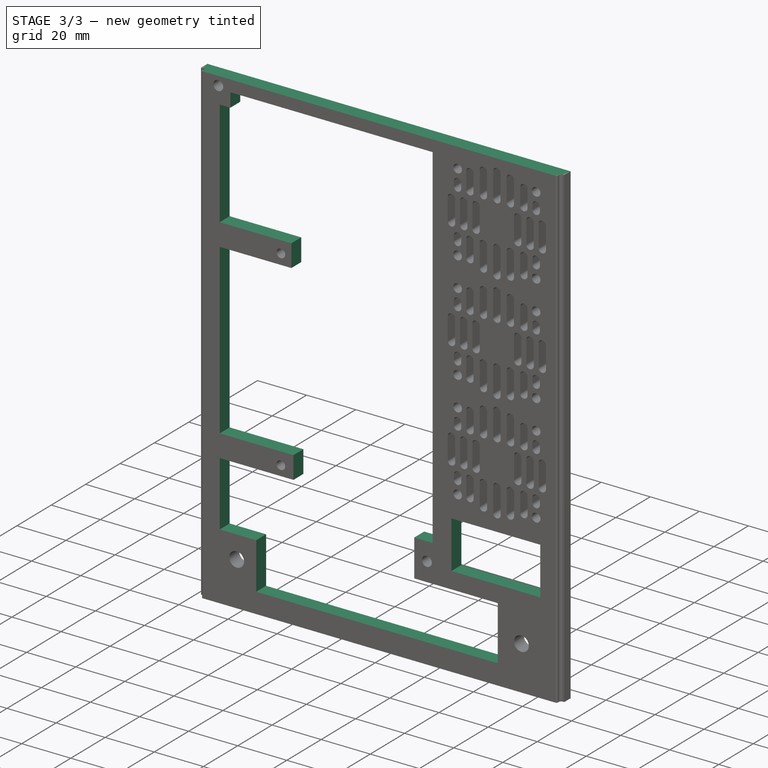
[diagram: stage 3 of 3 — iso view after this stage's code; geometry added in this stage tinted green]
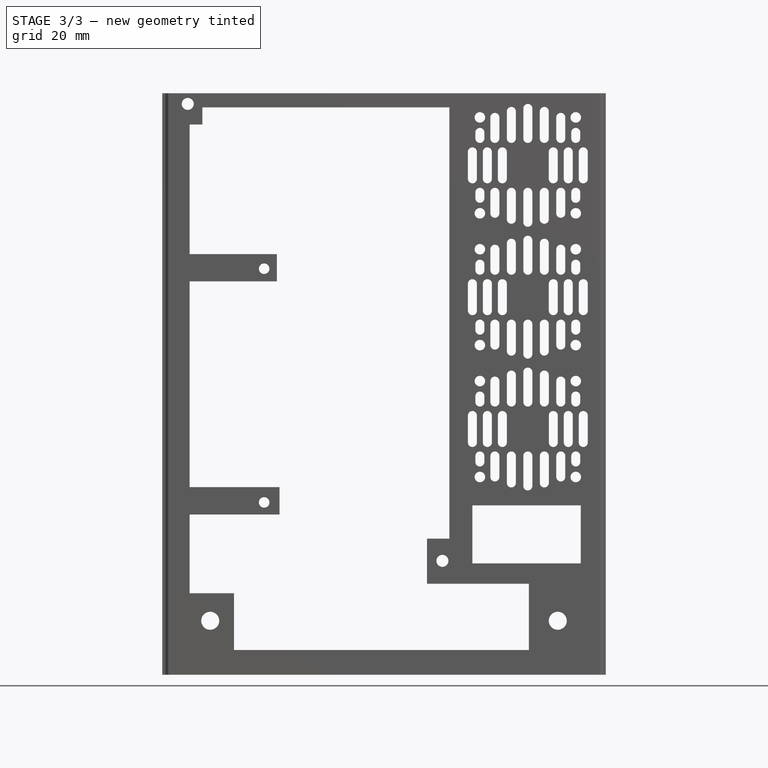
[diagram: stage 3 of 3 — front view after this stage's code; geometry added in this stage tinted green]
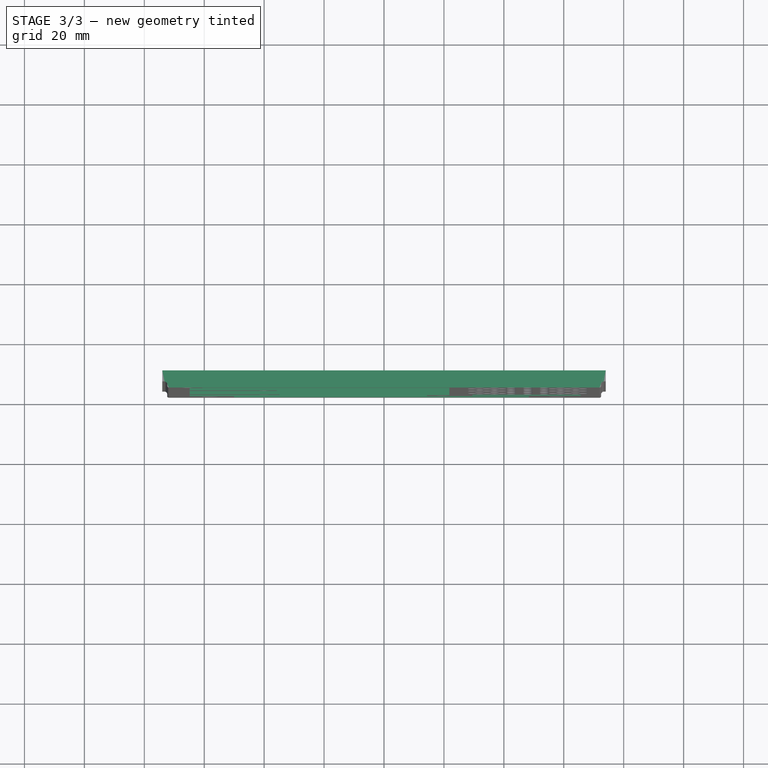
[diagram: stage 3 of 3 — top view after this stage's code; geometry added in this stage tinted green]
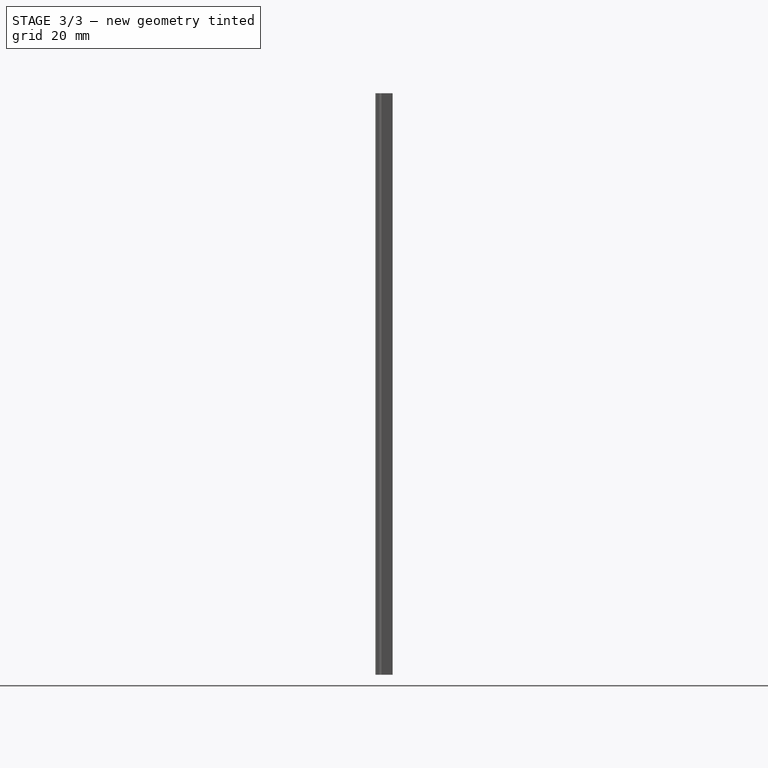
[diagram: stage 3 of 3 — right view after this stage's code; geometry added in this stage tinted green]
FEATURE [Sketcher::SketchObject] Sketch
  MapMode = 5
  Placement = pos=(0,0,0) rot=(1,0,0;1.5708rad)
  Support = -> [XZ_Plane016]
  sketch-geometry (30):
    g0: LineSegment StartX=-60.5984 StartY=79.3524 StartZ=0 EndX=21.8111 EndY=79.3524 EndZ=0
    g1: LineSegment StartX=-60.5984 StartY=79.3524 StartZ=0 EndX=-60.5984 EndY=73.648 EndZ=0
    g2: LineSegment StartX=-60.5984 StartY=73.648 StartZ=0 EndX=-64.8922 EndY=73.648 EndZ=0
    g3: LineSegment StartX=-64.8922 StartY=73.648 StartZ=0 EndX=-64.8922 EndY=30.3663 EndZ=0
    g4: LineSegment StartX=-64.8922 StartY=30.3663 StartZ=0 EndX=-35.7368 EndY=30.3663 EndZ=0
    g5: LineSegment StartX=21.8111 StartY=30.3663 StartZ=0 EndX=21.8111 EndY=79.3524 EndZ=0
    g6: LineSegment StartX=-64.8922 StartY=21.2612 StartZ=0 EndX=-35.7368 EndY=21.2612 EndZ=0
    g7: LineSegment StartX=21.8111 StartY=21.156 StartZ=0 EndX=21.8111 EndY=-64.5767 EndZ=0
    g8: LineSegment StartX=21.8111 StartY=-64.5767 StartZ=0 EndX=14.3424 EndY=-64.5767 EndZ=0
    g9: LineSegment StartX=14.3424 StartY=-64.5767 StartZ=0 EndX=14.3424 EndY=-79.6349 EndZ=0
    g10: LineSegment StartX=14.3424 StartY=-79.6349 StartZ=0 EndX=48.3479 EndY=-79.6349 EndZ=0
    g11: LineSegment StartX=48.3479 StartY=-79.6349 StartZ=0 EndX=48.3479 EndY=-101.773 EndZ=0
    g12: LineSegment StartX=48.3479 StartY=-101.773 StartZ=0 EndX=-50.0587 EndY=-101.773 EndZ=0
    g13: LineSegment StartX=-50.0587 StartY=-101.773 StartZ=0 EndX=-50.0587 EndY=-82.7943 EndZ=0
    g14: LineSegment StartX=-49.2428 StartY=-56.5205 StartZ=0 EndX=-34.8743 EndY=-56.5205 EndZ=0
    g15: LineSegment StartX=-34.8743 StartY=-56.5205 StartZ=0 EndX=-34.8743 EndY=-47.4096 EndZ=0
    g16: LineSegment StartX=-34.8743 StartY=-47.4096 StartZ=0 EndX=-64.8922 EndY=-47.4096 EndZ=0
    g17: LineSegment StartX=-64.8922 StartY=-47.4096 StartZ=0 EndX=-64.8922 EndY=21.2612 EndZ=0
    g18: LineSegment StartX=29.5012 StartY=-53.5054 StartZ=0 EndX=65.6815 EndY=-53.5054 EndZ=0
    g19: LineSegment StartX=65.6815 StartY=-53.5054 StartZ=0 EndX=65.6815 EndY=-72.8576 EndZ=0
    g20: LineSegment StartX=65.6815 StartY=-72.8576 StartZ=0 EndX=29.5012 EndY=-72.8576 EndZ=0
    g21: LineSegment StartX=29.5012 StartY=-72.8576 StartZ=0 EndX=29.5012 EndY=-53.5054 EndZ=0
    g22: GeomPoint X=21.8111 Y=79.3524 Z=0
    g23: GeomPoint X=21.8111 Y=79.3524 Z=0
    g24: GeomPoint X=21.8111 Y=79.3524 Z=0
    g25: LineSegment StartX=-50.0587 StartY=-82.7943 StartZ=0 EndX=-64.8922 EndY=-82.7943 EndZ=0
    g26: LineSegment StartX=-64.8922 StartY=-82.7943 StartZ=0 EndX=-64.8922 EndY=-56.5205 EndZ=0
    g27: LineSegment StartX=-64.8922 StartY=-56.5205 StartZ=0 EndX=-49.2428 EndY=-56.5205 EndZ=0
    g28: LineSegment StartX=-35.7368 StartY=30.3663 StartZ=0 EndX=-35.7368 EndY=21.2612 EndZ=0
    g29: LineSegment StartX=21.8111 StartY=30.3663 StartZ=0 EndX=21.8111 EndY=21.156 EndZ=0
  constraints (59):
    c: Coincident(g0,g1)
    c: Coincident(g1,g2)
    c: Horizontal(g2)
    c: Coincident(g2,g3)
    c: Vertical(g3)
    c: Horizontal(g4)
    c: Vertical(g5)
    c: Horizontal(g6)
    c: Coincident(g7,g8)
    c: Coincident(g8,g9)
    c: Coincident(g9,g10)
    c: Horizontal(g10)
    c: Coincident(g10,g11)
    c: Coincident(g11,g12)
    c: Horizontal(g12)
    c: Coincident(g12,g13)
    c: Vertical(g13)
    c: Coincident(g14,g15)
    c: Coincident(g15,g16)
    c: Coincident(g16,g17)
    c: Coincident(g17,g6)
    c: Vertical(g17)
    c: Vertical(g7)
    c: Horizontal(g8)
    c: Vertical(g9)
    c: Vertical(g11)
    c: Horizontal(g16)
    c: Vertical(g15)
    c: Horizontal(g14)
    c: Vertical(g1)
    c: Coincident(g4,g3)
    c: Coincident(g18,g19)
    c: Coincident(g19,g20)
    c: Coincident(g20,g21)
    c: Coincident(g21,g18)
    c: Horizontal(g18)
    c: Horizontal(g20)
    c: Vertical(g19)
    c: Vertical(g21)
    c: Horizontal(g0)
    c: Coincident(g22,g5)
    c: Coincident(g5,g0)
    c: Coincident(g5,g23)
    c: Coincident(g5,g24)
    c: Horizontal(g25)
    c: Coincident(g25,g26)
    c: Vertical(g26)
    c: Coincident(g26,g27)
    c: Coincident(g27,g14)
    c: Coincident(g13,g25)
    c: Horizontal(g27)
    c: Vertical(g28)
    c: Coincident(g29,g5)
    c: Coincident(g29,g7)
    c: Coincident(g4,g28)
    c: Coincident(g6,g28)
    c: Vertical(g29)
    c: Vertical(g6,g3)
    c: Vertical(g16,g26)
FEATURE [PartDesign::Pocket] Pocket008
  BaseFeature = -> Pocket007
  Length = 20
  Length2 = 100
  Profile = -> Sketch
  Type = 0
FEATURE [Sketcher::SketchObject] Sketch013
  MapMode = 5
  Placement = pos=(0,8,0) rot=(0,0.707107,0.707107;3.14159rad)
  Support = -> [Pocket008]
  sketch-geometry (4):
    g0: LineSegment StartX=-74.031 StartY=111.239 StartZ=0 EndX=74.0646 EndY=111.239 EndZ=0
    g1: LineSegment StartX=74.0646 StartY=111.239 StartZ=0 EndX=74.0646 EndY=84.0464 EndZ=0
    g2: LineSegment StartX=74.0646 StartY=84.0464 StartZ=0 EndX=-74.031 EndY=84.0464 EndZ=0
    g3: LineSegment StartX=-74.031 StartY=84.0464 StartZ=0 EndX=-74.031 EndY=111.239 EndZ=0
  constraints (8):
    c: Coincident(g0,g1)
    c: Coincident(g1,g2)
    c: Coincident(g2,g3)
    c: Coincident(g3,g0)
    c: Horizontal(g0)
    c: Horizontal(g2)
    c: Vertical(g1)
    c: Vertical(g3)
FEATURE [PartDesign::Pocket] Pocket009
  BaseFeature = -> Pocket008
  Length = 10
  Length2 = 100
  Profile = -> Sketch013
  Type = 0
FEATURE [PartDesign::Body] Body003
  Group = -> [Sketch008,Pad003,Sketch009,Pocket,Sketch010,Pocket005,Sketch011,Pocket006,Sketch012,Pocket007,Sketch,Pocket008,Sketch013,Pocket009]
  Origin = -> Origin016
  Tip = -> Pocket009
FEATURE [App::Part] Part001
  Group = -> [Body003]
  Origin = -> Origin
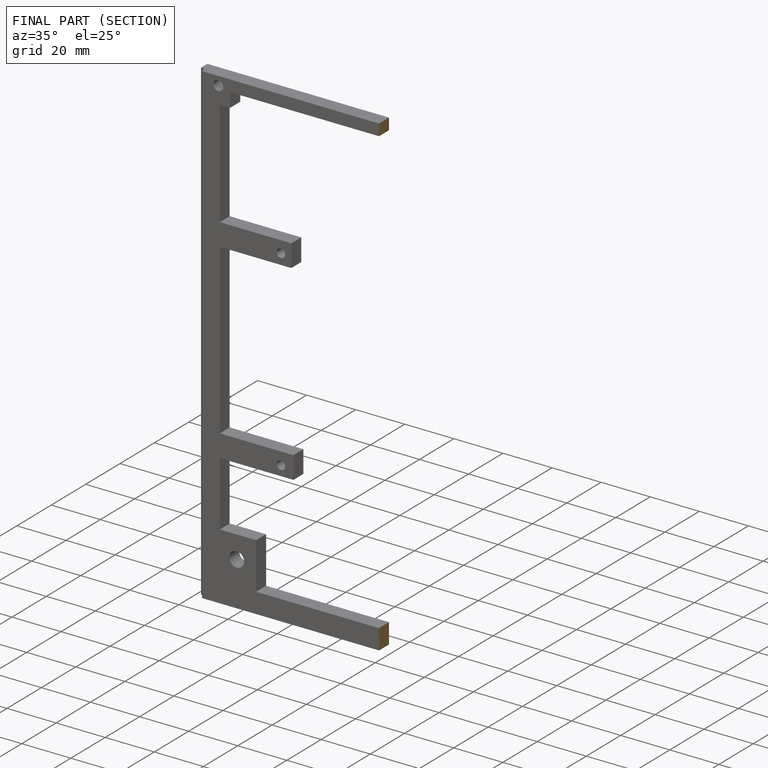
[diagram: finished part — half-section view (interior)]
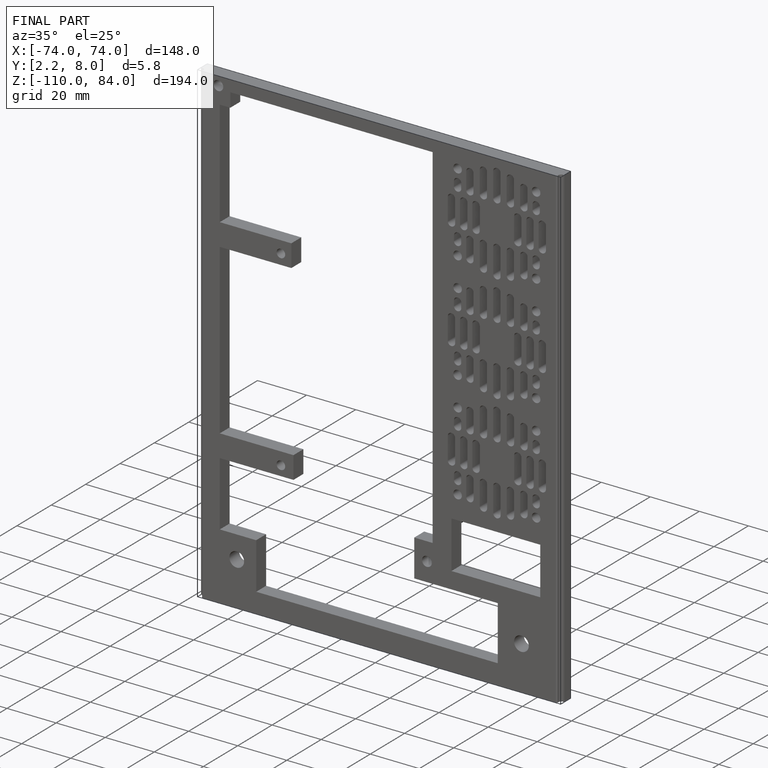
[diagram: finished part — iso view with bounding-box wireframe]
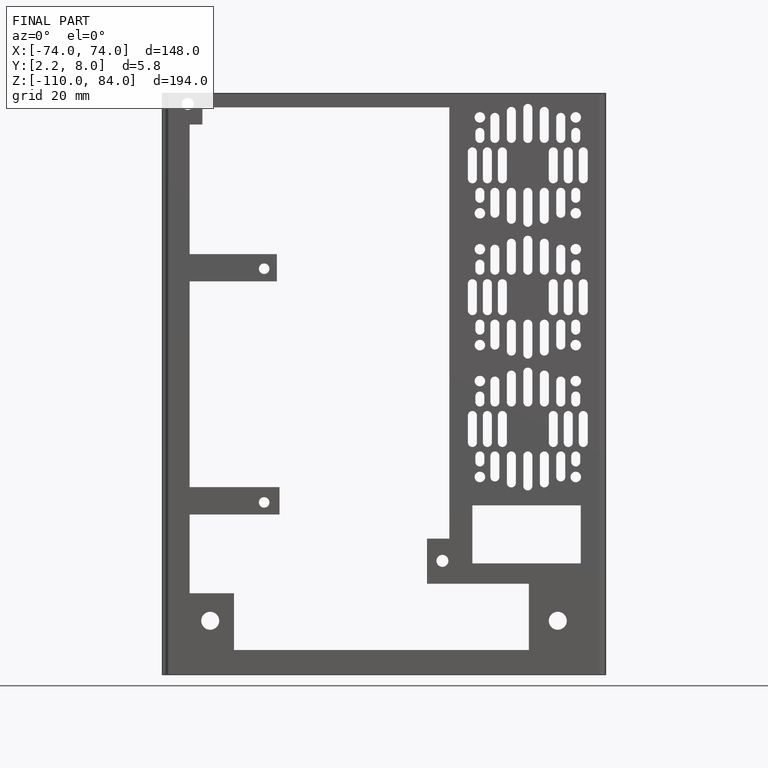
[diagram: finished part — front view with bounding-box wireframe]
